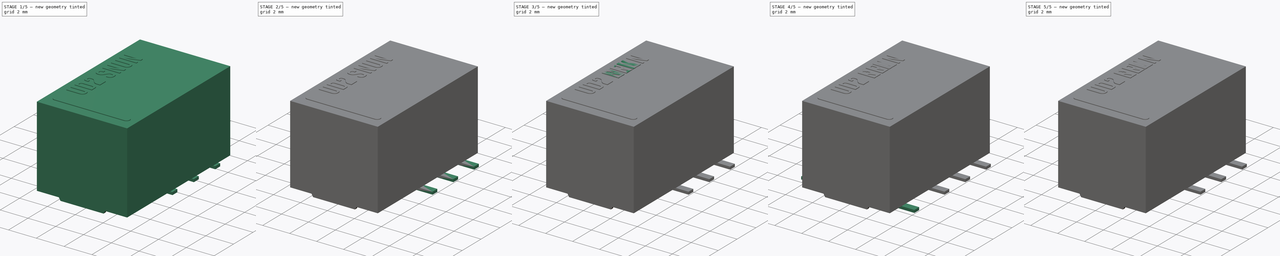
[diagram: build sequence overview — one tinted view per stage of 5, left to right]
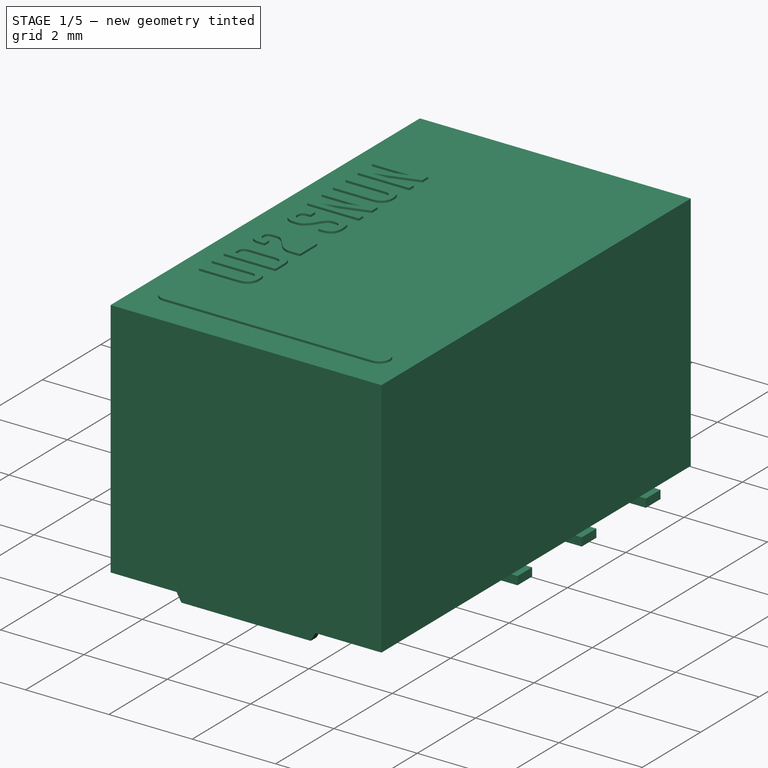
[diagram: stage 1 of 5 — iso view after this stage's code; geometry added in this stage tinted green]
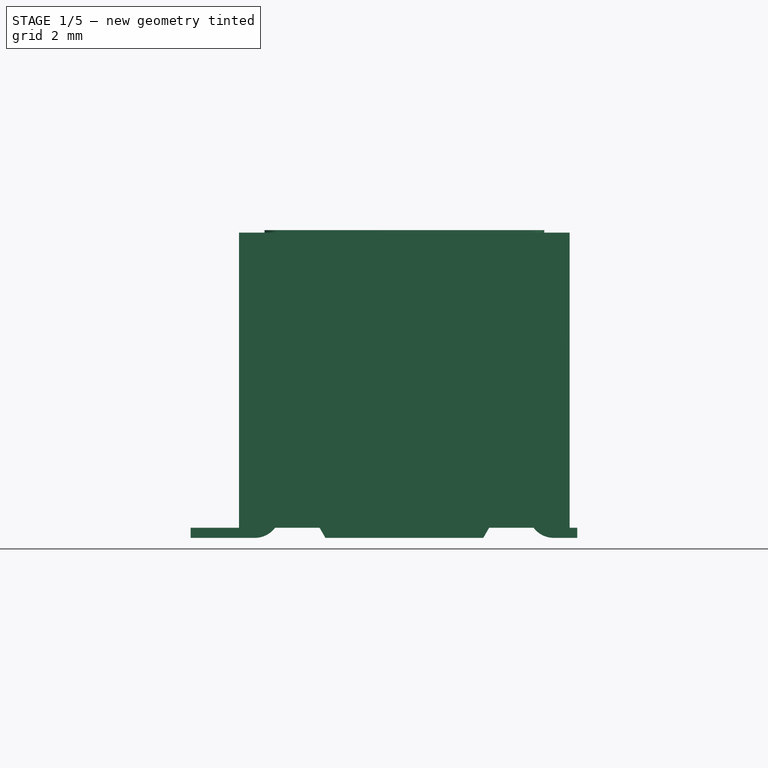
[diagram: stage 1 of 5 — front view after this stage's code; geometry added in this stage tinted green]
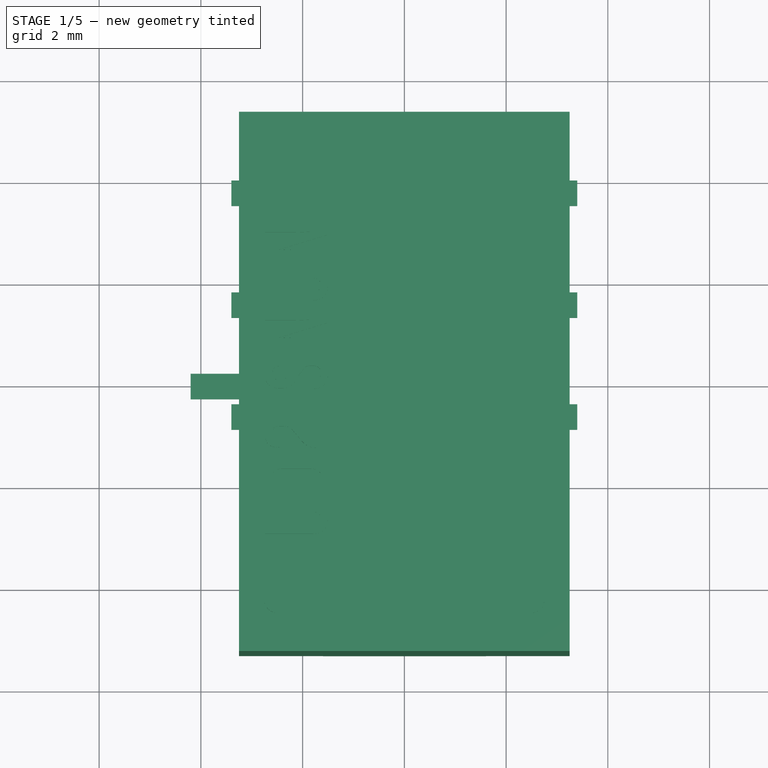
[diagram: stage 1 of 5 — top view after this stage's code; geometry added in this stage tinted green]
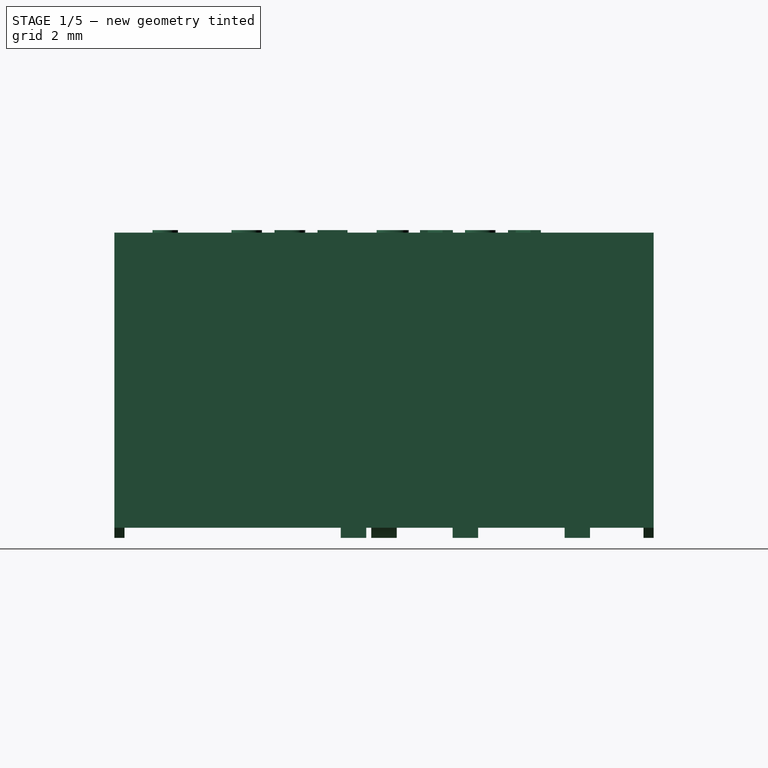
[diagram: stage 1 of 5 — right view after this stage's code; geometry added in this stage tinted green]
FCSTD DOCUMENT  (FreeCAD 0.19R16945 (Git))
Label: Kemet UD2 Series
License: All rights reserved
LicenseURL: http://en.wikipedia.org/wiki/All_rights_reserved
objects: Sketcher::SketchObject×42, PartDesign::Pad×36, PartDesign::Body×36, PartDesign::FeatureBase×24, PartDesign::Pocket×12, PartDesign::Fillet×12, Part::FeaturePython×12, PartDesign::Mirrored×6, Part::Part2DObjectPython×6, App::Part×6
note: 234 computed .brp shape members not serialized (recipe doc carries the construction recipe); baked Part::Feature solids carry a one-line shape summary decoded from their .brp

FEATURE [Sketcher::SketchObject] Sketch060
  MapMode = 5
  Placement = pos=(0,0,0.3) rot=(1,0,0;3.14159rad)
  Support = -> [Pocket021]
  sketch-geometry (8):
    g0: LineSegment StartX=-1.48597 StartY=4.5632 StartZ=0 EndX=1.48597 EndY=4.5632 EndZ=0
    g1: LineSegment StartX=2.2229 StartY=3.82626 StartZ=0 EndX=2.2229 EndY=-3.82626 EndZ=0
    g2: LineSegment StartX=1.48597 StartY=-4.5632 StartZ=0 EndX=-1.48597 EndY=-4.5632 EndZ=0
    g3: LineSegment StartX=-2.2229 StartY=-3.82626 StartZ=0 EndX=-2.2229 EndY=3.82626 EndZ=0
    g4: ArcOfCircle CenterX=-1.48597 CenterY=3.82626 CenterZ=0 NormalX=0 NormalY=0 NormalZ=1 AngleXU=0 Radius=0.736932 StartAngle=1.5708 EndAngle=3.14159
    g5: ArcOfCircle CenterX=1.48597 CenterY=3.82626 CenterZ=0 NormalX=0 NormalY=0 NormalZ=1 AngleXU=0 Radius=0.736932 StartAngle=0 EndAngle=1.5708
    g6: ArcOfCircle CenterX=1.48597 CenterY=-3.82626 CenterZ=0 NormalX=0 NormalY=0 NormalZ=1 AngleXU=0 Radius=0.736932 StartAngle=4.71239 EndAngle=6.28319
    g7: ArcOfCircle CenterX=-1.48597 CenterY=-3.82626 CenterZ=0 NormalX=0 NormalY=0 NormalZ=1 AngleXU=0 Radius=0.736932 StartAngle=3.14159 EndAngle=4.71239
  constraints (15):
    c: Horizontal(g0)
    c: Horizontal(g2)
    c: Vertical(g1)
    c: Vertical(g3)
    c: Tangent(g0,g4) = 1.5708
    c: Tangent(g3,g4) = 1.5708
    c: Tangent(g0,g5) = 1.5708
    c: Tangent(g1,g5) = 1.5708
    c: Tangent(g1,g6) = 1.5708
    c: Tangent(g2,g6) = 1.5708
    c: Tangent(g2,g7) = 1.5708
    c: Tangent(g3,g7) = 1.5708
    c: Equal(g7,g6)
    c: Symmetric(g3,g1,g-2)
    c: Symmetric(g0,g2,g-1)
FEATURE [Sketcher::SketchObject] Sketch065
  MapMode = 5
  Placement = pos=(0,0,0) rot=(1,0,0;1.5708rad)
  Support = -> [XZ_Plane057]
  sketch-geometry (7):
    g0: LineSegment StartX=-2.64 StartY=1.2 StartZ=0 EndX=-2.64 EndY=0.2 EndZ=0
    g1: LineSegment StartX=-2.64 StartY=0.2 StartZ=0 EndX=-4.2 EndY=0.2 EndZ=0
    g2: LineSegment StartX=-4.2 StartY=0.2 StartZ=0 EndX=-4.2 EndY=0 EndZ=0
    g3: LineSegment StartX=-4.2 StartY=0 StartZ=0 EndX=-2.44 EndY=0 EndZ=0
    g4: LineSegment StartX=-2.44 StartY=0 StartZ=0 EndX=-2.44 EndY=1.2 EndZ=0
    g5: LineSegment StartX=-2.44 StartY=1.2 StartZ=0 EndX=-2.64 EndY=1.2 EndZ=0
    g6: GeomPoint X=-2.54 Y=1.2 Z=0
  constraints (19):
    c: Vertical(g0)
    c: Coincident(g0,g1)
    c: Horizontal(g1)
    c: Coincident(g1,g2)
    c: PointOnObject(g2,g-1)
    c: Vertical(g2)
    c: Coincident(g2,g3)
    c: Horizontal(g3)
    c: Coincident(g3,g4)
    c: Vertical(g4)
    c: Coincident(g4,g5)
    c: Coincident(g5,g0)
    c: Horizontal(g5)
    c: DistanceY(g2,g2) = 0.2
    c: Symmetric(g0,g4,g6)
    c: DistanceX(g6,g-1) = 2.54
    c: Equal(g5,g2)
    c: DistanceY(g4,g4) = 1.2
    c: DistanceX(g2,g-1) = 4.2
FEATURE [PartDesign::Pad] Pad044
  Length = 0.5
  Length2 = 100
  Midplane = true
  Placement = pos=(0,0,0) rot=(1,0,0;1.5708rad)
  Profile = -> Sketch065
  Type = 0
FEATURE [PartDesign::Body] Body048  label="UD2-SNU_Body"
  Group = -> [Sketch062,Pad048,Sketch063,Pocket020,Sketch061,Pocket021,Sketch060,Sketch066,Pad047,Mirrored004,Pad045,Sketch067,Pad046,ShapeString004,Pad043]
  Origin = -> Origin057
  Tip = -> Pad043
FEATURE [PartDesign::Fillet] Fillet009
  Base = -> Pad044 [Edge2]
  BaseFeature = -> Pad044
  Placement = pos=(0,0,0) rot=(1,0,0;1.5708rad)
  Radius = 0.25
FEATURE [PartDesign::Fillet] Fillet008
  Base = -> Fillet009 [Edge20]
  BaseFeature = -> Fillet009
  Placement = pos=(0,0,0) rot=(1,0,0;1.5708rad)
  Radius = 0.5
FEATURE [App::Part] Part004  label="UD2-SNU"
  Group = -> [Body048,Body047,Body049,Body052,Body050,Body051,Array015,Array016]
  Origin = -> Origin058
FEATURE [Sketcher::SketchObject] Sketch073
  MapMode = 5
  Placement = pos=(0,0,0) rot=(1,0,0;1.5708rad)
  Support = -> [XZ_Plane068]
  sketch-geometry (7):
    g0: LineSegment StartX=-2.64 StartY=1.2 StartZ=0 EndX=-2.64 EndY=0.2 EndZ=0
    g1: LineSegment StartX=-2.64 StartY=0.2 StartZ=0 EndX=-3.4 EndY=0.2 EndZ=0
    g2: LineSegment StartX=-3.4 StartY=0.2 StartZ=0 EndX=-3.4 EndY=0 EndZ=0
    g3: LineSegment StartX=-3.4 StartY=0 StartZ=0 EndX=-2.44 EndY=0 EndZ=0
    g4: LineSegment StartX=-2.44 StartY=0 StartZ=0 EndX=-2.44 EndY=1.2 EndZ=0
    g5: LineSegment StartX=-2.44 StartY=1.2 StartZ=0 EndX=-2.64 EndY=1.2 EndZ=0
    g6: GeomPoint X=-2.54 Y=1.2 Z=0
  constraints (19):
    c: Vertical(g0)
    c: Coincident(g0,g1)
    c: Horizontal(g1)
    c: Coincident(g1,g2)
    c: PointOnObject(g2,g-1)
    c: Vertical(g2)
    c: Coincident(g2,g3)
    c: Horizontal(g3)
    c: Coincident(g3,g4)
    c: Vertical(g4)
    c: Coincident(g4,g5)
    c: Coincident(g5,g0)
    c: Horizontal(g5)
    c: DistanceY(g2,g2) = 0.2
    c: Symmetric(g0,g4,g6)
    c: DistanceX(g6,g-1) = 2.54
    c: Equal(g5,g2)
    c: DistanceY(g4,g4) = 1.2
    c: DistanceX(g2,g-1) = 3.4
FEATURE [PartDesign::Pad] Pad051
  Length = 0.5
  Length2 = 100
  Midplane = true
  Placement = pos=(0,0,0) rot=(1,0,0;1.5708rad)
  Profile = -> Sketch073
  Type = 0
FEATURE [Sketcher::SketchObject] Sketch075
  MapMode = 5
  Support = -> [XY_Plane064]
  sketch-geometry (4):
    g0: LineSegment StartX=3.25 StartY=-5.3 StartZ=0 EndX=-3.25 EndY=-5.3 EndZ=0
    g1: LineSegment StartX=-3.25 StartY=-5.3 StartZ=0 EndX=-3.25 EndY=5.3 EndZ=0
    g2: LineSegment StartX=-3.25 StartY=5.3 StartZ=0 EndX=3.25 EndY=5.3 EndZ=0
    g3: LineSegment StartX=3.25 StartY=5.3 StartZ=0 EndX=3.25 EndY=-5.3 EndZ=0
  constraints (10):
    c: Coincident(g0,g1)
    c: Coincident(g1,g2)
    c: Coincident(g2,g3)
    c: Coincident(g3,g0)
    c: Horizontal(g0)
    c: Vertical(g1)
    c: Symmetric(g1,g2,g-2)
    c: Symmetric(g2,g0,g-1)
    c: DistanceX(g2,g2) = 6.5
    c: DistanceY(g3,g3) = 10.6
FEATURE [PartDesign::Pad] Pad053  label="MainPad005"
  Length = 6
  Length2 = 100
  Profile = -> Sketch075
  Type = 0
FEATURE [Sketcher::SketchObject] Sketch070
  ExternalGeometry = -> [Pad053]
  MapMode = 5
  Placement = pos=(-3.25,0,0) rot=(0.57735,-0.57735,-0.57735;2.0944rad)
  Support = -> [Pad053]
  sketch-geometry (4):
    g0: LineSegment StartX=-5.3 StartY=0 StartZ=0 EndX=5.3 EndY=0 EndZ=0
    g1: LineSegment StartX=5.3 StartY=0 StartZ=0 EndX=5.3 EndY=0.2 EndZ=0
    g2: LineSegment StartX=5.3 StartY=0.2 StartZ=0 EndX=-5.3 EndY=0.2 EndZ=0
    g3: LineSegment StartX=-5.3 StartY=0.2 StartZ=0 EndX=-5.3 EndY=0 EndZ=0
  constraints (11):
    c: Coincident(g0,g1)
    c: Coincident(g1,g2)
    c: Coincident(g2,g3)
    c: Coincident(g3,g0)
    c: Horizontal(g0)
    c: Horizontal(g2)
    c: Vertical(g1)
    c: Vertical(g3)
    c: Coincident(g0,g-3)
    c: PointOnObject(g1,g-4)
    c: DistanceY(g1,g1) = 0.2
FEATURE [PartDesign::Pocket] Pocket024  label="BottomPocket010"
  BaseFeature = -> Pad053
  Length = 5
  Length2 = 100
  Profile = -> Sketch070
  Type = 1
FEATURE [Sketcher::SketchObject] Sketch076
  ExternalGeometry = -> [Pocket024]
  MapMode = 5
  Placement = pos=(0,0,0.2) rot=(1,0,0;3.14159rad)
  Support = -> [Pocket024]
  sketch-geometry (4):
    g0: LineSegment StartX=-3.05 StartY=5.1 StartZ=0 EndX=3.05 EndY=5.1 EndZ=0
    g1: LineSegment StartX=3.05 StartY=5.1 StartZ=0 EndX=3.05 EndY=-5.1 EndZ=0
    g2: LineSegment StartX=3.05 StartY=-5.1 StartZ=0 EndX=-3.05 EndY=-5.1 EndZ=0
    g3: LineSegment StartX=-3.05 StartY=-5.1 StartZ=0 EndX=-3.05 EndY=5.1 EndZ=0
  constraints (10):
    c: Coincident(g0,g1)
    c: Coincident(g1,g2)
    c: Coincident(g2,g3)
    c: Coincident(g3,g0)
    c: Horizontal(g2)
    c: Vertical(g3)
    c: Symmetric(g0,g0,g-2)
    c: Symmetric(g0,g1,g-1)
    c: DistanceX(g0,g-3) = 0.2
    c: DistanceY(g0,g-3) = 0.2
FEATURE [PartDesign::Pocket] Pocket025  label="BottomPocket011"
  BaseFeature = -> Pocket024
  Length = 0.1
  Length2 = 100
  Profile = -> Sketch076
  Type = 0
FEATURE [Sketcher::SketchObject] Sketch072
  MapMode = 5
  Placement = pos=(0,0,0.3) rot=(1,0,0;3.14159rad)
  Support = -> [Pocket025]
  sketch-geometry (8):
    g0: LineSegment StartX=-1.48597 StartY=4.5632 StartZ=0 EndX=1.48597 EndY=4.5632 EndZ=0
    g1: LineSegment StartX=2.2229 StartY=3.82626 StartZ=0 EndX=2.2229 EndY=-3.82626 EndZ=0
    g2: LineSegment StartX=1.48597 StartY=-4.5632 StartZ=0 EndX=-1.48597 EndY=-4.5632 EndZ=0
    g3: LineSegment StartX=-2.2229 StartY=-3.82626 StartZ=0 EndX=-2.2229 EndY=3.82626 EndZ=0
    g4: ArcOfCircle CenterX=-1.48597 CenterY=3.82626 CenterZ=0 NormalX=0 NormalY=0 NormalZ=1 AngleXU=0 Radius=0.736932 StartAngle=1.5708 EndAngle=3.14159
    g5: ArcOfCircle CenterX=1.48597 CenterY=3.82626 CenterZ=0 NormalX=0 NormalY=0 NormalZ=1 AngleXU=0 Radius=0.736932 StartAngle=0 EndAngle=1.5708
    g6: ArcOfCircle CenterX=1.48597 CenterY=-3.82626 CenterZ=0 NormalX=0 NormalY=0 NormalZ=1 AngleXU=0 Radius=0.736932 StartAngle=4.71239 EndAngle=6.28319
    g7: ArcOfCircle CenterX=-1.48597 CenterY=-3.82626 CenterZ=0 NormalX=0 NormalY=0 NormalZ=1 AngleXU=0 Radius=0.736932 StartAngle=3.14159 EndAngle=4.71239
  constraints (15):
    c: Horizontal(g0)
    c: Horizontal(g2)
    c: Vertical(g1)
    c: Vertical(g3)
    c: Tangent(g0,g4) = 1.5708
    c: Tangent(g3,g4) = 1.5708
    c: Tangent(g0,g5) = 1.5708
    c: Tangent(g1,g5) = 1.5708
    c: Tangent(g1,g6) = 1.5708
    c: Tangent(g2,g6) = 1.5708
    c: Tangent(g2,g7) = 1.5708
    c: Tangent(g3,g7) = 1.5708
    c: Equal(g7,g6)
    c: Symmetric(g3,g1,g-2)
    c: Symmetric(g0,g2,g-1)
FEATURE [Sketcher::SketchObject] Sketch077
  MapMode = 5
  Placement = pos=(0,-5.3,0) rot=(1,0,0;1.5708rad)
  Support = -> [Pocket025]
  sketch-geometry (4):
    g0: LineSegment StartX=-1.55163 StartY=0 StartZ=0 EndX=-1.6671 EndY=0.2 EndZ=0
    g1: LineSegment StartX=-1.6671 StartY=0.2 StartZ=0 EndX=1.6671 EndY=0.2 EndZ=0
    g2: LineSegment StartX=1.6671 StartY=0.2 StartZ=0 EndX=1.55163 EndY=0 EndZ=0
    g3: LineSegment StartX=1.55163 StartY=0 StartZ=0 EndX=-1.55163 EndY=0 EndZ=0
  constraints (10):
    c: Coincident(g0,g1)
    c: Coincident(g1,g2)
    c: PointOnObject(g2,g-1)
    c: Coincident(g2,g3)
    c: Coincident(g3,g0)
    c: Symmetric(g0,g1,g-2)
    c: Symmetric(g0,g2,g-2)
    c: Equal(g0,g2)
    c: DistanceY(g-1,g0) = 0.2
    c: Angle(g3,g0) = 2.0944
FEATURE [PartDesign::Pad] Pad049
  BaseFeature = -> Pocket025
  Length = 0.2
  Length2 = 100
  Profile = -> Sketch077
  Refine = true
  Reversed = true
  Type = 0
FEATURE [PartDesign::Mirrored] Mirrored005
  BaseFeature = -> Pad049
  MirrorPlane = -> XZ_Plane067
  Originals = -> [Pad049]
  Refine = true
FEATURE [PartDesign::Pad] Pad050  label="BottomPad005"
  BaseFeature = -> Mirrored005
  Length = 0.05
  Length2 = 100
  Profile = -> Sketch072
  Type = 0
FEATURE [Sketcher::SketchObject] Sketch071
  ExternalGeometry = -> [Pad050]
  MapMode = 5
  Placement = pos=(0,0,6) rot=(0,0,1;0rad)
  Support = -> [Pad050]
  sketch-geometry (4):
    g0: ArcOfCircle CenterX=-2.5 CenterY=-4.3 CenterZ=0 NormalX=0 NormalY=0 NormalZ=1 AngleXU=0 Radius=0.25 StartAngle=1.5708 EndAngle=4.71239
    g1: ArcOfCircle CenterX=2.5 CenterY=-4.3 CenterZ=0 NormalX=0 NormalY=0 NormalZ=1 AngleXU=0 Radius=0.25 StartAngle=4.71239 EndAngle=7.85398
    g2: LineSegment StartX=-2.5 StartY=-4.55 StartZ=0 EndX=2.5 EndY=-4.55 EndZ=0
    g3: LineSegment StartX=-2.5 StartY=-4.05 StartZ=0 EndX=2.5 EndY=-4.05 EndZ=0
  constraints (9):
    c: Tangent(g0,g3) = 1.5708
    c: Tangent(g0,g2) = -1.5708
    c: Tangent(g2,g1) = -1.5708
    c: Tangent(g3,g1) = 1.5708
    c: Horizontal(g2)
    c: Symmetric(g1,g0,g-2)
    c: DistanceY(g1,g1) = 0.5
    c: DistanceX(g-3,g0) = 0.75
    c: DistanceY(g-4,g0) = 1
FEATURE [PartDesign::Pad] Pad052  label="CoilMarkingPad005"
  BaseFeature = -> Pad050
  Length = 0.05
  Length2 = 100
  Profile = -> Sketch071
  Type = 0
FEATURE [Part::Part2DObjectPython] ShapeString005  # Draft 2D object (typed FeaturePython)
  AttachmentOffset = pos=(-1,-1,0) rot=(0,0,-1;1.5708rad)
  FontFile = <userpath>/Desktop/GitHub/freecad-projects/00-fonts/coolvetica condensed rg.ttf
  MapMode = 6
  Placement = pos=(-1.5,-3.05,6) rot=(0,0,1;1.5708rad)
  Size = 0.75
  String = UD2 SNUN
  Support = -> [Pad052]
  Tracking = 0.125
FEATURE [PartDesign::Pad] Pad054  label="ShapeStringPad005"
  BaseFeature = -> Pad052
  Length = 0.05
  Length2 = 100
  Profile = -> ShapeString005
  Refine = true
  Type = 0
FEATURE [PartDesign::Fillet] Fillet010
  Base = -> Pad051 [Edge2]
  BaseFeature = -> Pad051
  Placement = pos=(0,0,0) rot=(1,0,0;1.5708rad)
  Radius = 0.25
FEATURE [PartDesign::Fillet] Fillet011
  Base = -> Fillet010 [Edge20]
  BaseFeature = -> Fillet010
  Placement = pos=(0,0,0) rot=(1,0,0;1.5708rad)
  Radius = 0.5
FEATURE [PartDesign::Body] Body053  label="UD2-SNUN_Body"
  Group = -> [Sketch075,Pad053,Sketch070,Pocket024,Sketch076,Pocket025,Sketch072,Sketch077,Pad049,Mirrored005,Pad050,Sketch071,Pad052,ShapeString005,Pad054]
  Origin = -> Origin064
  Tip = -> Pad054
FEATURE [PartDesign::Body] Body057
  Group = -> [Sketch073,Pad051,Fillet010,Fillet011]
  Origin = -> Origin066
  Tip = -> Fillet011
FEATURE [PartDesign::FeatureBase] Clone035
  BaseFeature = -> Body057
FEATURE [PartDesign::FeatureBase] Clone037
  BaseFeature = -> Body057
FEATURE [PartDesign::Body] Body054
  BaseFeature = -> Body057
  Group = -> [Clone037]
  Origin = -> Origin067
  Placement = pos=(0,-3.8,0) rot=(0,0,1;0rad)
  Tip = -> Clone037
FEATURE [PartDesign::FeatureBase] Clone036
  BaseFeature = -> Body054
  Placement = pos=(0,-3.8,0) rot=(0,0,1;0rad)
FEATURE [PartDesign::Body] Body055
  Group = -> [Clone036]
  Origin = -> Origin065
  Placement = pos=(0,3.2,0) rot=(0,0,1;0rad)
  Tip = -> Clone036
FEATURE [Part::FeaturePython] Array017  # Draft array (typed FeaturePython)
  Angle = 360
  ArrayType = 0
  Axis = (0,0,1)
  Base = -> Body055
  Center = (0,0,0)
  Fuse = false
  IntervalAxis = (0,0,0)
  IntervalX = (1,0,0)
  IntervalY = (0,2.2,0)
  IntervalZ = (0,0,1)
  NumberPolar = 1
  NumberX = 1
  NumberY = 3
  NumberZ = 1
FEATURE [PartDesign::Body] Body056
  BaseFeature = -> Body057
  Group = -> [Clone035]
  Origin = -> Origin063
  Placement = pos=(0,-3.8,0) rot=(0,0,1;3.14159rad)
  Tip = -> Clone035
FEATURE [PartDesign::FeatureBase] Clone034
  BaseFeature = -> Body056
  Placement = pos=(0,-3.8,0) rot=(0,0,1;3.14159rad)
FEATURE [PartDesign::Body] Body058
  Group = -> [Clone034]
  Origin = -> Origin062
  Placement = pos=(0,3.2,0) rot=(0,0,1;0rad)
  Tip = -> Clone034
FEATURE [Part::FeaturePython] Array018  # Draft array (typed FeaturePython)
  Angle = 360
  ArrayType = 0
  Axis = (0,0,1)
  Base = -> Body058
  Center = (0,0,0)
  Fuse = false
  IntervalAxis = (0,0,0)
  IntervalX = (1,0,0)
  IntervalY = (0,2.2,0)
  IntervalZ = (0,0,1)
  NumberPolar = 1
  NumberX = 1
  NumberY = 3
  NumberZ = 1
FEATURE [App::Part] Part005  label="UD2-SNUN"
  Group = -> [Body053,Body057,Body056,Body054,Body058,Body055,Array018,Array017]
  Origin = -> Origin061
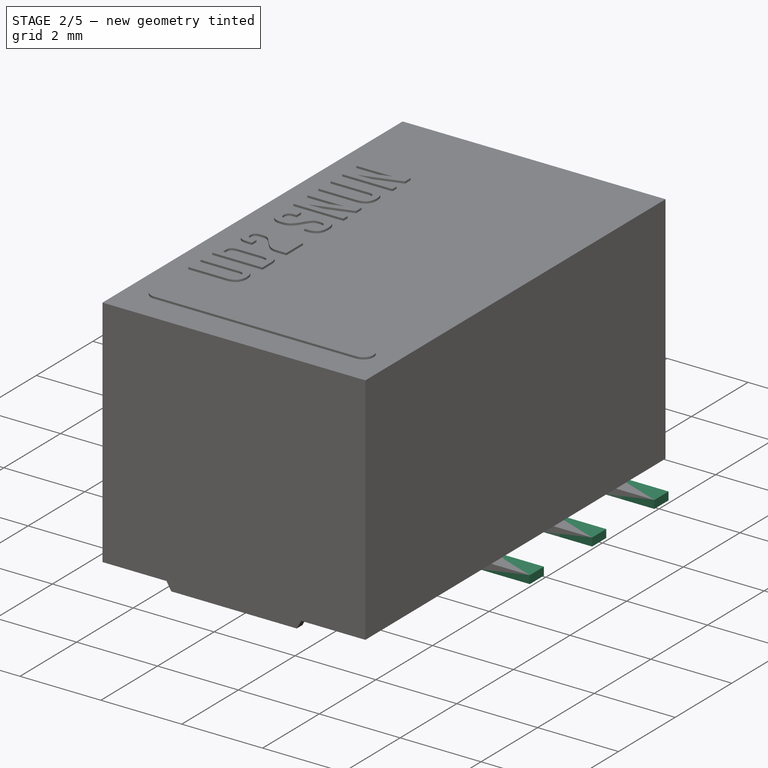
[diagram: stage 2 of 5 — iso view after this stage's code; geometry added in this stage tinted green]
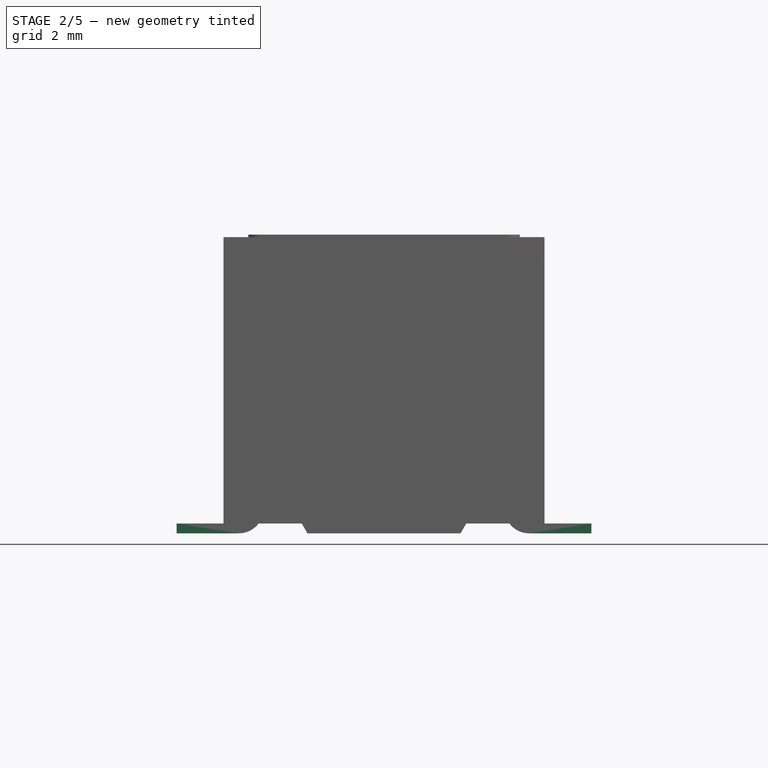
[diagram: stage 2 of 5 — front view after this stage's code; geometry added in this stage tinted green]
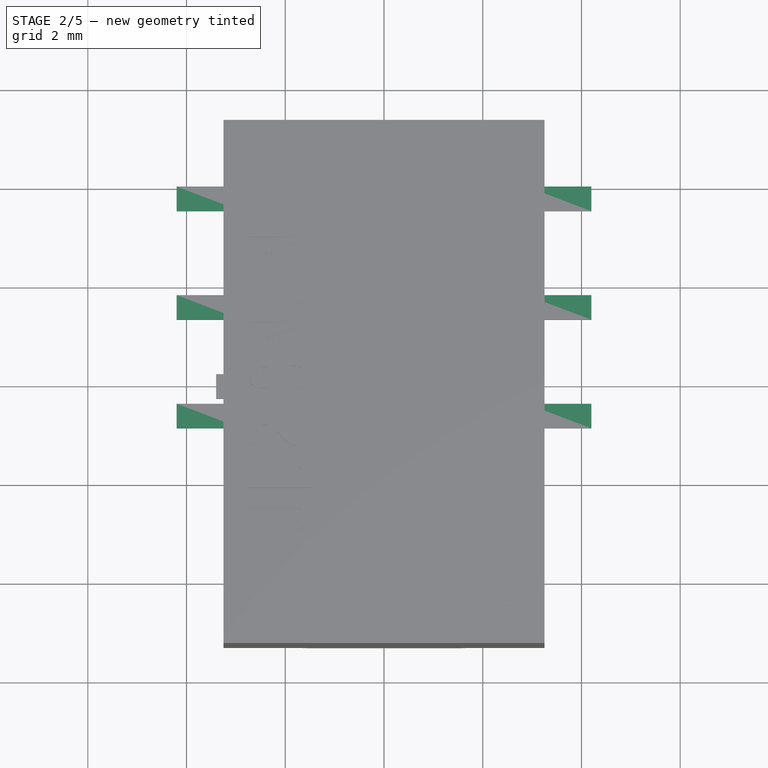
[diagram: stage 2 of 5 — top view after this stage's code; geometry added in this stage tinted green]
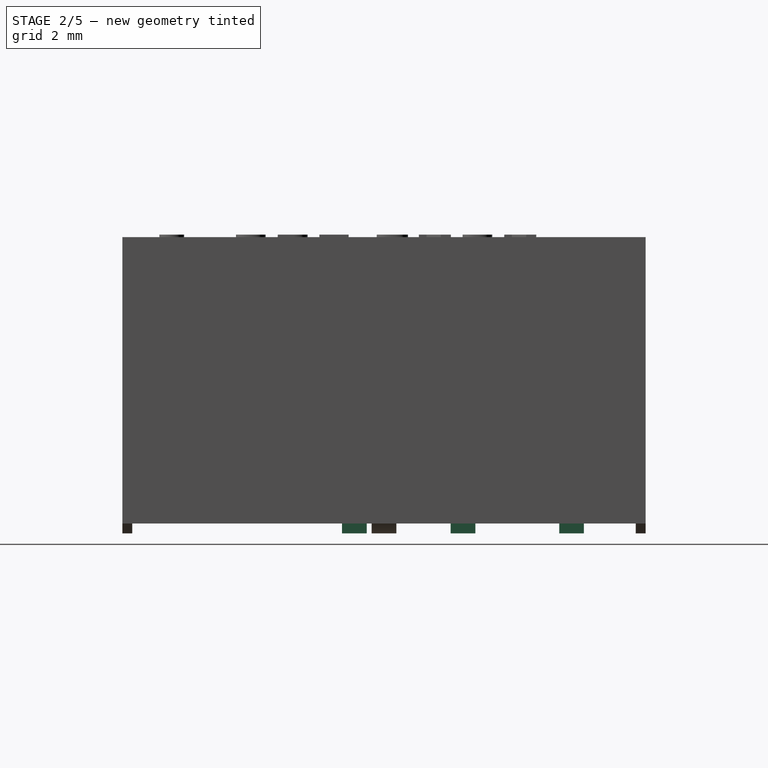
[diagram: stage 2 of 5 — right view after this stage's code; geometry added in this stage tinted green]
FEATURE [PartDesign::Body] Body036  label="UD2-NUN_Body"
  Group = -> [Sketch043,Pad035,Sketch050,Pocket016,Sketch044,Pocket014,Sketch045,Sketch048,Pad031,Mirrored002,Pad032,Sketch042,Pad034,ShapeString002,Pad036]
  Origin = -> Origin043
  Tip = -> Pad036
FEATURE [App::Part] Part002  label="UD2-NUN"
  Group = -> [Body036,Body039,Body040,Body035,Body038,Body037,Array012,Array011]
  Origin = -> Origin040
FEATURE [PartDesign::Body] Body046  label="UD2-NEN_Body"
  Origin = -> Origin052
FEATURE [Sketcher::SketchObject] Sketch054
  MapMode = 5
  Support = -> [XY_Plane053]
  sketch-geometry (4):
    g0: LineSegment StartX=3.25 StartY=-5.3 StartZ=0 EndX=-3.25 EndY=-5.3 EndZ=0
    g1: LineSegment StartX=-3.25 StartY=-5.3 StartZ=0 EndX=-3.25 EndY=5.3 EndZ=0
    g2: LineSegment StartX=-3.25 StartY=5.3 StartZ=0 EndX=3.25 EndY=5.3 EndZ=0
    g3: LineSegment StartX=3.25 StartY=5.3 StartZ=0 EndX=3.25 EndY=-5.3 EndZ=0
  constraints (10):
    c: Coincident(g0,g1)
    c: Coincident(g1,g2)
    c: Coincident(g2,g3)
    c: Coincident(g3,g0)
    c: Horizontal(g0)
    c: Vertical(g1)
    c: Symmetric(g1,g2,g-2)
    c: Symmetric(g2,g0,g-1)
    c: DistanceX(g2,g2) = 6.5
    c: DistanceY(g3,g3) = 10.6
FEATURE [PartDesign::Pad] Pad042  label="MainPad003"
  Length = 6
  Length2 = 100
  Profile = -> Sketch054
  Type = 0
FEATURE [Sketcher::SketchObject] Sketch058
  ExternalGeometry = -> [Pad042]
  MapMode = 5
  Placement = pos=(-3.25,0,0) rot=(0.57735,-0.57735,-0.57735;2.0944rad)
  Support = -> [Pad042]
  sketch-geometry (4):
    g0: LineSegment StartX=-5.3 StartY=0 StartZ=0 EndX=5.3 EndY=0 EndZ=0
    g1: LineSegment StartX=5.3 StartY=0 StartZ=0 EndX=5.3 EndY=0.2 EndZ=0
    g2: LineSegment StartX=5.3 StartY=0.2 StartZ=0 EndX=-5.3 EndY=0.2 EndZ=0
    g3: LineSegment StartX=-5.3 StartY=0.2 StartZ=0 EndX=-5.3 EndY=0 EndZ=0
  constraints (11):
    c: Coincident(g0,g1)
    c: Coincident(g1,g2)
    c: Coincident(g2,g3)
    c: Coincident(g3,g0)
    c: Horizontal(g0)
    c: Horizontal(g2)
    c: Vertical(g1)
    c: Vertical(g3)
    c: Coincident(g0,g-3)
    c: PointOnObject(g1,g-4)
    c: DistanceY(g1,g1) = 0.2
FEATURE [PartDesign::Pocket] Pocket019  label="BottomPocket007"
  BaseFeature = -> Pad042
  Length = 5
  Length2 = 100
  Profile = -> Sketch058
  Type = 1
FEATURE [Sketcher::SketchObject] Sketch053
  ExternalGeometry = -> [Pocket019]
  MapMode = 5
  Placement = pos=(0,0,0.2) rot=(1,0,0;3.14159rad)
  Support = -> [Pocket019]
  sketch-geometry (4):
    g0: LineSegment StartX=-3.05 StartY=5.1 StartZ=0 EndX=3.05 EndY=5.1 EndZ=0
    g1: LineSegment StartX=3.05 StartY=5.1 StartZ=0 EndX=3.05 EndY=-5.1 EndZ=0
    g2: LineSegment StartX=3.05 StartY=-5.1 StartZ=0 EndX=-3.05 EndY=-5.1 EndZ=0
    g3: LineSegment StartX=-3.05 StartY=-5.1 StartZ=0 EndX=-3.05 EndY=5.1 EndZ=0
  constraints (10):
    c: Coincident(g0,g1)
    c: Coincident(g1,g2)
    c: Coincident(g2,g3)
    c: Coincident(g3,g0)
    c: Horizontal(g2)
    c: Vertical(g3)
    c: Symmetric(g0,g0,g-2)
    c: Symmetric(g0,g1,g-1)
    c: DistanceX(g0,g-3) = 0.2
    c: DistanceY(g0,g-3) = 0.2
FEATURE [PartDesign::Pocket] Pocket017  label="BottomPocket006"
  Length = 0.1
  Length2 = 100
  Profile = -> Sketch053
  Type = 0
FEATURE [Sketcher::SketchObject] Sketch052
  MapMode = 5
  Placement = pos=(0,0,0.3) rot=(1,0,0;3.14159rad)
  Support = -> [Pocket017]
  sketch-geometry (8):
    g0: LineSegment StartX=-1.48597 StartY=4.5632 StartZ=0 EndX=1.48597 EndY=4.5632 EndZ=0
    g1: LineSegment StartX=2.2229 StartY=3.82626 StartZ=0 EndX=2.2229 EndY=-3.82626 EndZ=0
    g2: LineSegment StartX=1.48597 StartY=-4.5632 StartZ=0 EndX=-1.48597 EndY=-4.5632 EndZ=0
    g3: LineSegment StartX=-2.2229 StartY=-3.82626 StartZ=0 EndX=-2.2229 EndY=3.82626 EndZ=0
    g4: ArcOfCircle CenterX=-1.48597 CenterY=3.82626 CenterZ=0 NormalX=0 NormalY=0 NormalZ=1 AngleXU=0 Radius=0.736932 StartAngle=1.5708 EndAngle=3.14159
    g5: ArcOfCircle CenterX=1.48597 CenterY=3.82626 CenterZ=0 NormalX=0 NormalY=0 NormalZ=1 AngleXU=0 Radius=0.736932 StartAngle=0 EndAngle=1.5708
    g6: ArcOfCircle CenterX=1.48597 CenterY=-3.82626 CenterZ=0 NormalX=0 NormalY=0 NormalZ=1 AngleXU=0 Radius=0.736932 StartAngle=4.71239 EndAngle=6.28319
    g7: ArcOfCircle CenterX=-1.48597 CenterY=-3.82626 CenterZ=0 NormalX=0 NormalY=0 NormalZ=1 AngleXU=0 Radius=0.736932 StartAngle=3.14159 EndAngle=4.71239
  constraints (15):
    c: Horizontal(g0)
    c: Horizontal(g2)
    c: Vertical(g1)
    c: Vertical(g3)
    c: Tangent(g0,g4) = 1.5708
    c: Tangent(g3,g4) = 1.5708
    c: Tangent(g0,g5) = 1.5708
    c: Tangent(g1,g5) = 1.5708
    c: Tangent(g1,g6) = 1.5708
    c: Tangent(g2,g6) = 1.5708
    c: Tangent(g2,g7) = 1.5708
    c: Tangent(g3,g7) = 1.5708
    c: Equal(g7,g6)
    c: Symmetric(g3,g1,g-2)
    c: Symmetric(g0,g2,g-1)
FEATURE [Sketcher::SketchObject] Sketch057
  MapMode = 5
  Placement = pos=(0,-5.3,0) rot=(1,0,0;1.5708rad)
  Support = -> [Pocket017]
  sketch-geometry (4):
    g0: LineSegment StartX=-1.55163 StartY=0 StartZ=0 EndX=-1.6671 EndY=0.2 EndZ=0
    g1: LineSegment StartX=-1.6671 StartY=0.2 StartZ=0 EndX=1.6671 EndY=0.2 EndZ=0
    g2: LineSegment StartX=1.6671 StartY=0.2 StartZ=0 EndX=1.55163 EndY=0 EndZ=0
    g3: LineSegment StartX=1.55163 StartY=0 StartZ=0 EndX=-1.55163 EndY=0 EndZ=0
  constraints (10):
    c: Coincident(g0,g1)
    c: Coincident(g1,g2)
    c: PointOnObject(g2,g-1)
    c: Coincident(g2,g3)
    c: Coincident(g3,g0)
    c: Symmetric(g0,g1,g-2)
    c: Symmetric(g0,g2,g-2)
    c: Equal(g0,g2)
    c: DistanceY(g-1,g0) = 0.2
    c: Angle(g3,g0) = 2.0944
FEATURE [PartDesign::Pad] Pad037
  BaseFeature = -> Pocket017
  Length = 0.2
  Length2 = 100
  Profile = -> Sketch057
  Refine = true
  Reversed = true
  Type = 0
FEATURE [Sketcher::SketchObject] Sketch059
  MapMode = 5
  Placement = pos=(0,0,0) rot=(1,0,0;1.5708rad)
  Support = -> [XZ_Plane053]
  sketch-geometry (7):
    g0: LineSegment StartX=-2.64 StartY=1.2 StartZ=0 EndX=-2.64 EndY=0.2 EndZ=0
    g1: LineSegment StartX=-2.64 StartY=0.2 StartZ=0 EndX=-3.4 EndY=0.2 EndZ=0
    g2: LineSegment StartX=-3.4 StartY=0.2 StartZ=0 EndX=-3.4 EndY=0 EndZ=0
    g3: LineSegment StartX=-3.4 StartY=0 StartZ=0 EndX=-2.44 EndY=0 EndZ=0
    g4: LineSegment StartX=-2.44 StartY=0 StartZ=0 EndX=-2.44 EndY=1.2 EndZ=0
    g5: LineSegment StartX=-2.44 StartY=1.2 StartZ=0 EndX=-2.64 EndY=1.2 EndZ=0
    g6: GeomPoint X=-2.54 Y=1.2 Z=0
  constraints (19):
    c: Vertical(g0)
    c: Coincident(g0,g1)
    c: Horizontal(g1)
    c: Coincident(g1,g2)
    c: PointOnObject(g2,g-1)
    c: Vertical(g2)
    c: Coincident(g2,g3)
    c: Horizontal(g3)
    c: Coincident(g3,g4)
    c: Vertical(g4)
    c: Coincident(g4,g5)
    c: Coincident(g5,g0)
    c: Horizontal(g5)
    c: DistanceY(g2,g2) = 0.2
    c: Symmetric(g0,g4,g6)
    c: DistanceX(g6,g-1) = 2.54
    c: Equal(g5,g2)
    c: DistanceY(g4,g4) = 1.2
    c: DistanceX(g2,g-1) = 3.4
FEATURE [PartDesign::Pad] Pad041
  Length = 0.5
  Length2 = 100
  Midplane = true
  Placement = pos=(0,0,0) rot=(1,0,0;1.5708rad)
  Profile = -> Sketch059
  Type = 0
FEATURE [PartDesign::Fillet] Fillet006
  Base = -> Pad041 [Edge2]
  BaseFeature = -> Pad041
  Placement = pos=(0,0,0) rot=(1,0,0;1.5708rad)
  Radius = 0.25
FEATURE [PartDesign::Fillet] Fillet007
  Base = -> Fillet006 [Edge20]
  BaseFeature = -> Fillet006
  Placement = pos=(0,0,0) rot=(1,0,0;1.5708rad)
  Radius = 0.5
FEATURE [App::Part] Part003  label="UD2-NEN"
  Group = -> [Body046,Body044,Body041,Body045,Body043,Body042,Array013,Array014,Pad039,Pad038,Pad040,Pocket019,Pad042,Pad037,Pocket017,Mirrored003,Sketch057,Sketch054,Sketch052,Sketch053,Sketch055,Sketch058,ShapeString003]
  Origin = -> Origin047
FEATURE [Sketcher::SketchObject] Sketch062
  MapMode = 5
  Support = -> [XY_Plane058]
  sketch-geometry (4):
    g0: LineSegment StartX=3.25 StartY=-5.3 StartZ=0 EndX=-3.25 EndY=-5.3 EndZ=0
    g1: LineSegment StartX=-3.25 StartY=-5.3 StartZ=0 EndX=-3.25 EndY=5.3 EndZ=0
    g2: LineSegment StartX=-3.25 StartY=5.3 StartZ=0 EndX=3.25 EndY=5.3 EndZ=0
    g3: LineSegment StartX=3.25 StartY=5.3 StartZ=0 EndX=3.25 EndY=-5.3 EndZ=0
  constraints (10):
    c: Coincident(g0,g1)
    c: Coincident(g1,g2)
    c: Coincident(g2,g3)
    c: Coincident(g3,g0)
    c: Horizontal(g0)
    c: Vertical(g1)
    c: Symmetric(g1,g2,g-2)
    c: Symmetric(g2,g0,g-1)
    c: DistanceX(g2,g2) = 6.5
    c: DistanceY(g3,g3) = 10.6
FEATURE [PartDesign::Pad] Pad048  label="MainPad004"
  Length = 5.45
  Length2 = 100
  Profile = -> Sketch062
  Type = 0
FEATURE [Sketcher::SketchObject] Sketch063
  ExternalGeometry = -> [Pad048]
  MapMode = 5
  Placement = pos=(-3.25,0,0) rot=(0.57735,-0.57735,-0.57735;2.0944rad)
  Support = -> [Pad048]
  sketch-geometry (4):
    g0: LineSegment StartX=-5.3 StartY=0 StartZ=0 EndX=5.3 EndY=0 EndZ=0
    g1: LineSegment StartX=5.3 StartY=0 StartZ=0 EndX=5.3 EndY=0.2 EndZ=0
    g2: LineSegment StartX=5.3 StartY=0.2 StartZ=0 EndX=-5.3 EndY=0.2 EndZ=0
    g3: LineSegment StartX=-5.3 StartY=0.2 StartZ=0 EndX=-5.3 EndY=0 EndZ=0
  constraints (11):
    c: Coincident(g0,g1)
    c: Coincident(g1,g2)
    c: Coincident(g2,g3)
    c: Coincident(g3,g0)
    c: Horizontal(g0)
    c: Horizontal(g2)
    c: Vertical(g1)
    c: Vertical(g3)
    c: Coincident(g0,g-3)
    c: PointOnObject(g1,g-4)
    c: DistanceY(g1,g1) = 0.2
FEATURE [PartDesign::Pocket] Pocket020  label="BottomPocket008"
  BaseFeature = -> Pad048
  Length = 5
  Length2 = 100
  Profile = -> Sketch063
  Type = 1
FEATURE [Sketcher::SketchObject] Sketch061
  ExternalGeometry = -> [Pocket020]
  MapMode = 5
  Placement = pos=(0,0,0.2) rot=(1,0,0;3.14159rad)
  Support = -> [Pocket020]
  sketch-geometry (4):
    g0: LineSegment StartX=-3.05 StartY=5.1 StartZ=0 EndX=3.05 EndY=5.1 EndZ=0
    g1: LineSegment StartX=3.05 StartY=5.1 StartZ=0 EndX=3.05 EndY=-5.1 EndZ=0
    g2: LineSegment StartX=3.05 StartY=-5.1 StartZ=0 EndX=-3.05 EndY=-5.1 EndZ=0
    g3: LineSegment StartX=-3.05 StartY=-5.1 StartZ=0 EndX=-3.05 EndY=5.1 EndZ=0
  constraints (10):
    c: Coincident(g0,g1)
    c: Coincident(g1,g2)
    c: Coincident(g2,g3)
    c: Coincident(g3,g0)
    c: Horizontal(g2)
    c: Vertical(g3)
    c: Symmetric(g0,g0,g-2)
    c: Symmetric(g0,g1,g-1)
    c: DistanceX(g0,g-3) = 0.2
    c: DistanceY(g0,g-3) = 0.2
FEATURE [PartDesign::Pocket] Pocket021  label="BottomPocket009"
  BaseFeature = -> Pocket020
  Length = 0.1
  Length2 = 100
  Profile = -> Sketch061
  Type = 0
FEATURE [Sketcher::SketchObject] Sketch066
  MapMode = 5
  Placement = pos=(0,-5.3,0) rot=(1,0,0;1.5708rad)
  Support = -> [Pocket021]
  sketch-geometry (4):
    g0: LineSegment StartX=-1.55163 StartY=0 StartZ=0 EndX=-1.6671 EndY=0.2 EndZ=0
    g1: LineSegment StartX=-1.6671 StartY=0.2 StartZ=0 EndX=1.6671 EndY=0.2 EndZ=0
    g2: LineSegment StartX=1.6671 StartY=0.2 StartZ=0 EndX=1.55163 EndY=0 EndZ=0
    g3: LineSegment StartX=1.55163 StartY=0 StartZ=0 EndX=-1.55163 EndY=0 EndZ=0
  constraints (10):
    c: Coincident(g0,g1)
    c: Coincident(g1,g2)
    c: PointOnObject(g2,g-1)
    c: Coincident(g2,g3)
    c: Coincident(g3,g0)
    c: Symmetric(g0,g1,g-2)
    c: Symmetric(g0,g2,g-2)
    c: Equal(g0,g2)
    c: DistanceY(g-1,g0) = 0.2
    c: Angle(g3,g0) = 2.0944
FEATURE [PartDesign::Pad] Pad047
  BaseFeature = -> Pocket021
  Length = 0.2
  Length2 = 100
  Profile = -> Sketch066
  Refine = true
  Reversed = true
  Type = 0
FEATURE [PartDesign::Mirrored] Mirrored004
  BaseFeature = -> Pad047
  MirrorPlane = -> XZ_Plane059
  Originals = -> [Pad047]
  Refine = true
FEATURE [PartDesign::Pad] Pad045  label="BottomPad004"
  BaseFeature = -> Mirrored004
  Length = 0.05
  Length2 = 100
  Profile = -> Sketch060
  Type = 0
FEATURE [Sketcher::SketchObject] Sketch067
  ExternalGeometry = -> [Pad045]
  MapMode = 5
  Placement = pos=(0,0,5.45) rot=(0,0,1;0rad)
  Support = -> [Pad045]
  sketch-geometry (4):
    g0: ArcOfCircle CenterX=-2.5 CenterY=-4.3 CenterZ=0 NormalX=0 NormalY=0 NormalZ=1 AngleXU=0 Radius=0.25 StartAngle=1.5708 EndAngle=4.71239
    g1: ArcOfCircle CenterX=2.5 CenterY=-4.3 CenterZ=0 NormalX=0 NormalY=0 NormalZ=1 AngleXU=0 Radius=0.25 StartAngle=4.71239 EndAngle=7.85398
    g2: LineSegment StartX=-2.5 StartY=-4.55 StartZ=0 EndX=2.5 EndY=-4.55 EndZ=0
    g3: LineSegment StartX=-2.5 StartY=-4.05 StartZ=0 EndX=2.5 EndY=-4.05 EndZ=0
  constraints (9):
    c: Tangent(g0,g3) = 1.5708
    c: Tangent(g0,g2) = -1.5708
    c: Tangent(g2,g1) = -1.5708
    c: Tangent(g3,g1) = 1.5708
    c: Horizontal(g2)
    c: Symmetric(g1,g0,g-2)
    c: DistanceY(g1,g1) = 0.5
    c: DistanceX(g-3,g0) = 0.75
    c: DistanceY(g-4,g0) = 1
FEATURE [PartDesign::Pad] Pad046  label="CoilMarkingPad004"
  BaseFeature = -> Pad045
  Length = 0.05
  Length2 = 100
  Profile = -> Sketch067
  Type = 0
FEATURE [Part::Part2DObjectPython] ShapeString004  # Draft 2D object (typed FeaturePython)
  AttachmentOffset = pos=(-1,-1,0) rot=(0,0,-1;1.5708rad)
  FontFile = <userpath>/Desktop/GitHub/freecad-projects/00-fonts/coolvetica condensed rg.ttf
  MapMode = 6
  Placement = pos=(-1.5,-3.05,5.45) rot=(0,0,1;1.5708rad)
  Size = 0.75
  String = UD2 SNU
  Support = -> [Pad046]
  Tracking = 0.125
FEATURE [PartDesign::Pad] Pad043  label="ShapeStringPad004"
  BaseFeature = -> Pad046
  Length = 0.05
  Length2 = 100
  Profile = -> ShapeString004
  Refine = true
  Type = 0
FEATURE [PartDesign::Body] Body047
  Group = -> [Sketch065,Pad044,Fillet009,Fillet008]
  Origin = -> Origin059
  Tip = -> Fillet008
FEATURE [PartDesign::FeatureBase] Clone031
  BaseFeature = -> Body047
FEATURE [PartDesign::Body] Body049
  BaseFeature = -> Body047
  Group = -> [Clone031]
  Origin = -> Origin060
  Placement = pos=(0,-3.8,0) rot=(0,0,1;3.14159rad)
  Tip = -> Clone031
FEATURE [PartDesign::FeatureBase] Clone032
  BaseFeature = -> Body047
FEATURE [PartDesign::Body] Body052
  BaseFeature = -> Body047
  Group = -> [Clone032]
  Origin = -> Origin056
  Placement = pos=(0,-3.8,0) rot=(0,0,1;0rad)
  Tip = -> Clone032
FEATURE [PartDesign::FeatureBase] Clone030
  BaseFeature = -> Body052
  Placement = pos=(0,-3.8,0) rot=(0,0,1;0rad)
FEATURE [PartDesign::Body] Body051
  BaseFeature = -> Body052
  Group = -> [Clone030]
  Origin = -> Origin054
  Placement = pos=(0,3.2,0) rot=(0,0,1;0rad)
  Tip = -> Clone030
FEATURE [Part::FeaturePython] Array016  # Draft array (typed FeaturePython)
  Angle = 360
  ArrayType = 0
  Axis = (0,0,1)
  Base = -> Body051
  Center = (0,0,0)
  Fuse = false
  IntervalAxis = (0,0,0)
  IntervalX = (1,0,0)
  IntervalY = (0,2.2,0)
  IntervalZ = (0,0,1)
  NumberPolar = 1
  NumberX = 1
  NumberY = 3
  NumberZ = 1
FEATURE [PartDesign::FeatureBase] Clone033
  BaseFeature = -> Body049
  Placement = pos=(0,-3.8,0) rot=(0,0,1;3.14159rad)
FEATURE [PartDesign::Body] Body050
  BaseFeature = -> Body049
  Group = -> [Clone033]
  Origin = -> Origin055
  Placement = pos=(0,3.2,0) rot=(0,0,1;0rad)
  Tip = -> Clone033
FEATURE [Part::FeaturePython] Array015  # Draft array (typed FeaturePython)
  Angle = 360
  ArrayType = 0
  Axis = (0,0,1)
  Base = -> Body050
  Center = (0,0,0)
  Fuse = false
  IntervalAxis = (0,0,0)
  IntervalX = (1,0,0)
  IntervalY = (0,2.2,0)
  IntervalZ = (0,0,1)
  NumberPolar = 1
  NumberX = 1
  NumberY = 3
  NumberZ = 1
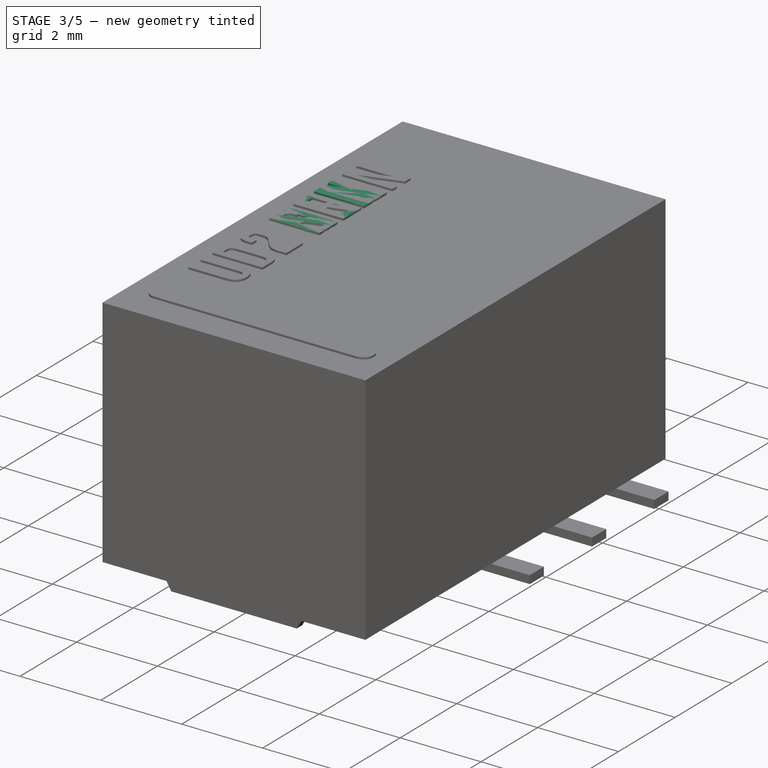
[diagram: stage 3 of 5 — iso view after this stage's code; geometry added in this stage tinted green]
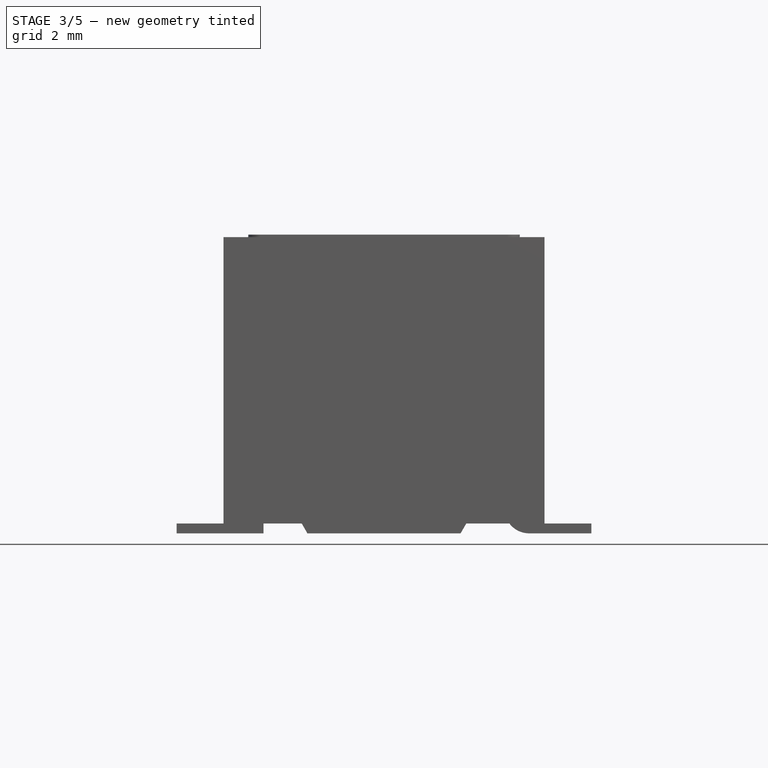
[diagram: stage 3 of 5 — front view after this stage's code; geometry added in this stage tinted green]
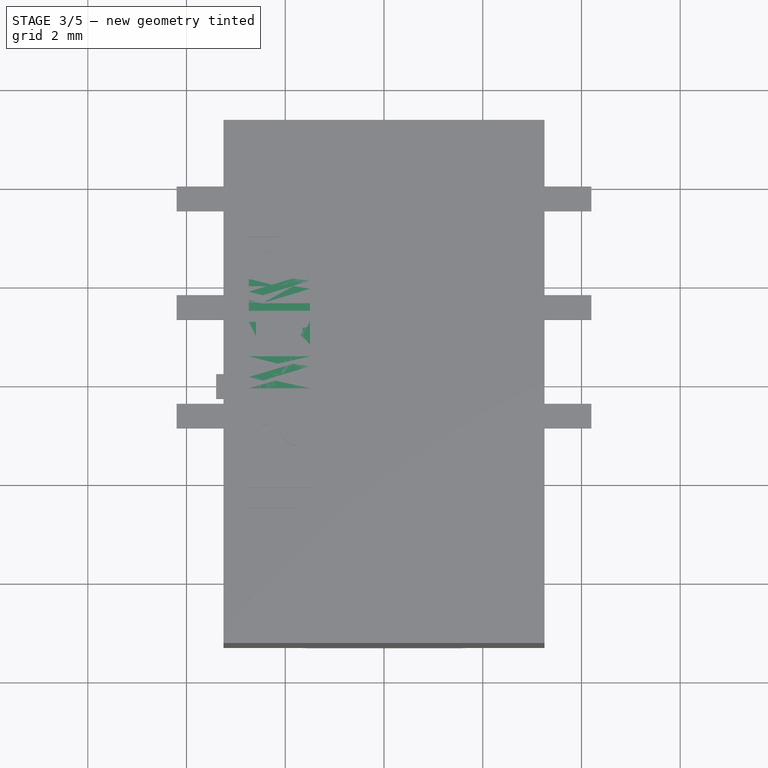
[diagram: stage 3 of 5 — top view after this stage's code; geometry added in this stage tinted green]
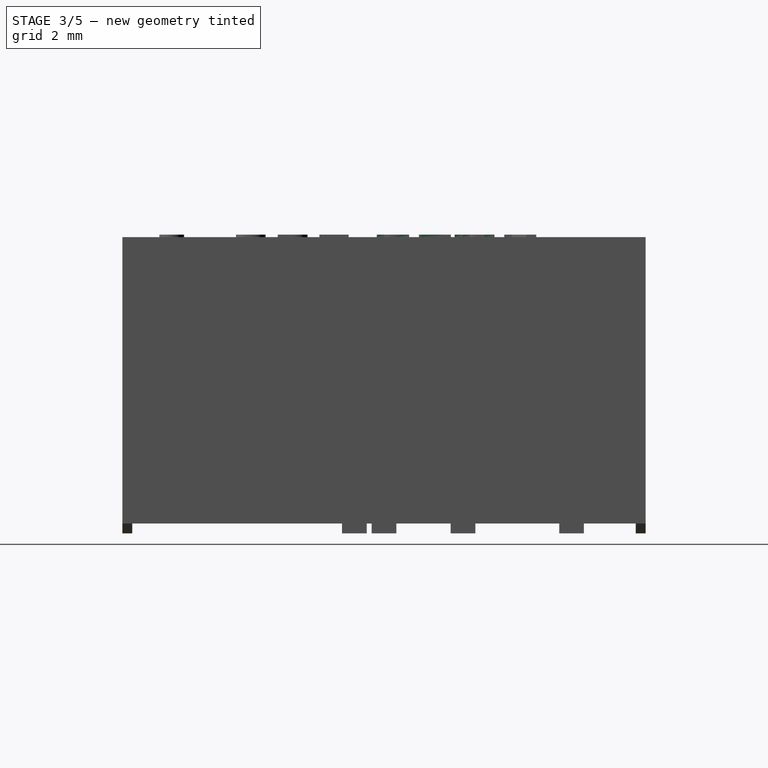
[diagram: stage 3 of 5 — right view after this stage's code; geometry added in this stage tinted green]
FEATURE [PartDesign::Body] Body030  label="UD2-NE_Body"
  Group = -> [Sketch035,Pad027,Sketch037,Pocket011,Sketch038,Pocket012,Sketch039,Sketch040,Pad030,Mirrored001,Pad029,Sketch034,Pad025,ShapeString001,Pad026]
  Origin = -> Origin039
  Tip = -> Pad026
FEATURE [App::Part] Part001  label="UD2-NE"
  Group = -> [Body030,Body032,Body034,Body029,Body031,Body033,Array010,Array009]
  Origin = -> Origin037
FEATURE [Sketcher::SketchObject] Sketch043
  MapMode = 5
  Support = -> [XY_Plane044]
  sketch-geometry (4):
    g0: LineSegment StartX=3.25 StartY=-5.3 StartZ=0 EndX=-3.25 EndY=-5.3 EndZ=0
    g1: LineSegment StartX=-3.25 StartY=-5.3 StartZ=0 EndX=-3.25 EndY=5.3 EndZ=0
    g2: LineSegment StartX=-3.25 StartY=5.3 StartZ=0 EndX=3.25 EndY=5.3 EndZ=0
    g3: LineSegment StartX=3.25 StartY=5.3 StartZ=0 EndX=3.25 EndY=-5.3 EndZ=0
  constraints (10):
    c: Coincident(g0,g1)
    c: Coincident(g1,g2)
    c: Coincident(g2,g3)
    c: Coincident(g3,g0)
    c: Horizontal(g0)
    c: Vertical(g1)
    c: Symmetric(g1,g2,g-2)
    c: Symmetric(g2,g0,g-1)
    c: DistanceX(g2,g2) = 6.5
    c: DistanceY(g3,g3) = 10.6
FEATURE [Sketcher::SketchObject] Sketch049
  MapMode = 5
  Placement = pos=(0,0,0) rot=(1,0,0;1.5708rad)
  Support = -> [XZ_Plane041]
  sketch-geometry (7):
    g0: LineSegment StartX=-2.64 StartY=1.2 StartZ=0 EndX=-2.64 EndY=0.2 EndZ=0
    g1: LineSegment StartX=-2.64 StartY=0.2 StartZ=0 EndX=-3.4 EndY=0.2 EndZ=0
    g2: LineSegment StartX=-3.4 StartY=0.2 StartZ=0 EndX=-3.4 EndY=0 EndZ=0
    g3: LineSegment StartX=-3.4 StartY=0 StartZ=0 EndX=-2.44 EndY=0 EndZ=0
    g4: LineSegment StartX=-2.44 StartY=0 StartZ=0 EndX=-2.44 EndY=1.2 EndZ=0
    g5: LineSegment StartX=-2.44 StartY=1.2 StartZ=0 EndX=-2.64 EndY=1.2 EndZ=0
    g6: GeomPoint X=-2.54 Y=1.2 Z=0
  constraints (19):
    c: Vertical(g0)
    c: Coincident(g0,g1)
    c: Horizontal(g1)
    c: Coincident(g1,g2)
    c: PointOnObject(g2,g-1)
    c: Vertical(g2)
    c: Coincident(g2,g3)
    c: Horizontal(g3)
    c: Coincident(g3,g4)
    c: Vertical(g4)
    c: Coincident(g4,g5)
    c: Coincident(g5,g0)
    c: Horizontal(g5)
    c: DistanceY(g2,g2) = 0.2
    c: Symmetric(g0,g4,g6)
    c: DistanceX(g6,g-1) = 2.54
    c: Equal(g5,g2)
    c: DistanceY(g4,g4) = 1.2
    c: DistanceX(g2,g-1) = 3.4
FEATURE [PartDesign::Pad] Pad033
  Length = 0.5
  Length2 = 100
  Midplane = true
  Placement = pos=(0,0,0) rot=(1,0,0;1.5708rad)
  Profile = -> Sketch049
  Type = 0
FEATURE [PartDesign::Fillet] Fillet004
  Base = -> Pad033 [Edge2]
  BaseFeature = -> Pad033
  Placement = pos=(0,0,0) rot=(1,0,0;1.5708rad)
  Radius = 0.25
FEATURE [PartDesign::Pad] Pad035  label="MainPad002"
  Length = 6
  Length2 = 100
  Profile = -> Sketch043
  Type = 0
FEATURE [Sketcher::SketchObject] Sketch050
  ExternalGeometry = -> [Pad035]
  MapMode = 5
  Placement = pos=(-3.25,0,0) rot=(0.57735,-0.57735,-0.57735;2.0944rad)
  Support = -> [Pad035]
  sketch-geometry (4):
    g0: LineSegment StartX=-5.3 StartY=0 StartZ=0 EndX=5.3 EndY=0 EndZ=0
    g1: LineSegment StartX=5.3 StartY=0 StartZ=0 EndX=5.3 EndY=0.2 EndZ=0
    g2: LineSegment StartX=5.3 StartY=0.2 StartZ=0 EndX=-5.3 EndY=0.2 EndZ=0
    g3: LineSegment StartX=-5.3 StartY=0.2 StartZ=0 EndX=-5.3 EndY=0 EndZ=0
  constraints (11):
    c: Coincident(g0,g1)
    c: Coincident(g1,g2)
    c: Coincident(g2,g3)
    c: Coincident(g3,g0)
    c: Horizontal(g0)
    c: Horizontal(g2)
    c: Vertical(g1)
    c: Vertical(g3)
    c: Coincident(g0,g-3)
    c: PointOnObject(g1,g-4)
    c: DistanceY(g1,g1) = 0.2
FEATURE [PartDesign::Pocket] Pocket016  label="BottomPocket005"
  BaseFeature = -> Pad035
  Length = 5
  Length2 = 100
  Profile = -> Sketch050
  Type = 1
FEATURE [Sketcher::SketchObject] Sketch044
  ExternalGeometry = -> [Pocket016]
  MapMode = 5
  Placement = pos=(0,0,0.2) rot=(1,0,0;3.14159rad)
  Support = -> [Pocket016]
  sketch-geometry (4):
    g0: LineSegment StartX=-3.05 StartY=5.1 StartZ=0 EndX=3.05 EndY=5.1 EndZ=0
    g1: LineSegment StartX=3.05 StartY=5.1 StartZ=0 EndX=3.05 EndY=-5.1 EndZ=0
    g2: LineSegment StartX=3.05 StartY=-5.1 StartZ=0 EndX=-3.05 EndY=-5.1 EndZ=0
    g3: LineSegment StartX=-3.05 StartY=-5.1 StartZ=0 EndX=-3.05 EndY=5.1 EndZ=0
  constraints (10):
    c: Coincident(g0,g1)
    c: Coincident(g1,g2)
    c: Coincident(g2,g3)
    c: Coincident(g3,g0)
    c: Horizontal(g2)
    c: Vertical(g3)
    c: Symmetric(g0,g0,g-2)
    c: Symmetric(g0,g1,g-1)
    c: DistanceX(g0,g-3) = 0.2
    c: DistanceY(g0,g-3) = 0.2
FEATURE [PartDesign::Pocket] Pocket014  label="BottomPocket004"
  BaseFeature = -> Pocket016
  Length = 0.1
  Length2 = 100
  Profile = -> Sketch044
  Type = 0
FEATURE [Sketcher::SketchObject] Sketch045
  MapMode = 5
  Placement = pos=(0,0,0.3) rot=(1,0,0;3.14159rad)
  Support = -> [Pocket014]
  sketch-geometry (8):
    g0: LineSegment StartX=-1.48597 StartY=4.5632 StartZ=0 EndX=1.48597 EndY=4.5632 EndZ=0
    g1: LineSegment StartX=2.2229 StartY=3.82626 StartZ=0 EndX=2.2229 EndY=-3.82626 EndZ=0
    g2: LineSegment StartX=1.48597 StartY=-4.5632 StartZ=0 EndX=-1.48597 EndY=-4.5632 EndZ=0
    g3: LineSegment StartX=-2.2229 StartY=-3.82626 StartZ=0 EndX=-2.2229 EndY=3.82626 EndZ=0
    g4: ArcOfCircle CenterX=-1.48597 CenterY=3.82626 CenterZ=0 NormalX=0 NormalY=0 NormalZ=1 AngleXU=0 Radius=0.736932 StartAngle=1.5708 EndAngle=3.14159
    g5: ArcOfCircle CenterX=1.48597 CenterY=3.82626 CenterZ=0 NormalX=0 NormalY=0 NormalZ=1 AngleXU=0 Radius=0.736932 StartAngle=0 EndAngle=1.5708
    g6: ArcOfCircle CenterX=1.48597 CenterY=-3.82626 CenterZ=0 NormalX=0 NormalY=0 NormalZ=1 AngleXU=0 Radius=0.736932 StartAngle=4.71239 EndAngle=6.28319
    g7: ArcOfCircle CenterX=-1.48597 CenterY=-3.82626 CenterZ=0 NormalX=0 NormalY=0 NormalZ=1 AngleXU=0 Radius=0.736932 StartAngle=3.14159 EndAngle=4.71239
  constraints (15):
    c: Horizontal(g0)
    c: Horizontal(g2)
    c: Vertical(g1)
    c: Vertical(g3)
    c: Tangent(g0,g4) = 1.5708
    c: Tangent(g3,g4) = 1.5708
    c: Tangent(g0,g5) = 1.5708
    c: Tangent(g1,g5) = 1.5708
    c: Tangent(g1,g6) = 1.5708
    c: Tangent(g2,g6) = 1.5708
    c: Tangent(g2,g7) = 1.5708
    c: Tangent(g3,g7) = 1.5708
    c: Equal(g7,g6)
    c: Symmetric(g3,g1,g-2)
    c: Symmetric(g0,g2,g-1)
FEATURE [Sketcher::SketchObject] Sketch048
  MapMode = 5
  Placement = pos=(0,-5.3,0) rot=(1,0,0;1.5708rad)
  Support = -> [Pocket014]
  sketch-geometry (4):
    g0: LineSegment StartX=-1.55163 StartY=0 StartZ=0 EndX=-1.6671 EndY=0.2 EndZ=0
    g1: LineSegment StartX=-1.6671 StartY=0.2 StartZ=0 EndX=1.6671 EndY=0.2 EndZ=0
    g2: LineSegment StartX=1.6671 StartY=0.2 StartZ=0 EndX=1.55163 EndY=0 EndZ=0
    g3: LineSegment StartX=1.55163 StartY=0 StartZ=0 EndX=-1.55163 EndY=0 EndZ=0
  constraints (10):
    c: Coincident(g0,g1)
    c: Coincident(g1,g2)
    c: PointOnObject(g2,g-1)
    c: Coincident(g2,g3)
    c: Coincident(g3,g0)
    c: Symmetric(g0,g1,g-2)
    c: Symmetric(g0,g2,g-2)
    c: Equal(g0,g2)
    c: DistanceY(g-1,g0) = 0.2
    c: Angle(g3,g0) = 2.0944
FEATURE [PartDesign::Pad] Pad031
  BaseFeature = -> Pocket014
  Length = 0.2
  Length2 = 100
  Profile = -> Sketch048
  Refine = true
  Reversed = true
  Type = 0
FEATURE [PartDesign::Mirrored] Mirrored002
  BaseFeature = -> Pad031
  MirrorPlane = -> XZ_Plane042
  Originals = -> [Pad031]
  Refine = true
FEATURE [PartDesign::Pad] Pad032  label="BottomPad002"
  BaseFeature = -> Mirrored002
  Length = 0.05
  Length2 = 100
  Profile = -> Sketch045
  Type = 0
FEATURE [Sketcher::SketchObject] Sketch042
  ExternalGeometry = -> [Pad032]
  MapMode = 5
  Placement = pos=(0,0,6) rot=(0,0,1;0rad)
  Support = -> [Pad032]
  sketch-geometry (4):
    g0: ArcOfCircle CenterX=-2.5 CenterY=-4.3 CenterZ=0 NormalX=0 NormalY=0 NormalZ=1 AngleXU=0 Radius=0.25 StartAngle=1.5708 EndAngle=4.71239
    g1: ArcOfCircle CenterX=2.5 CenterY=-4.3 CenterZ=0 NormalX=0 NormalY=0 NormalZ=1 AngleXU=0 Radius=0.25 StartAngle=4.71239 EndAngle=7.85398
    g2: LineSegment StartX=-2.5 StartY=-4.55 StartZ=0 EndX=2.5 EndY=-4.55 EndZ=0
    g3: LineSegment StartX=-2.5 StartY=-4.05 StartZ=0 EndX=2.5 EndY=-4.05 EndZ=0
  constraints (9):
    c: Tangent(g0,g3) = 1.5708
    c: Tangent(g0,g2) = -1.5708
    c: Tangent(g2,g1) = -1.5708
    c: Tangent(g3,g1) = 1.5708
    c: Horizontal(g2)
    c: Symmetric(g1,g0,g-2)
    c: DistanceY(g1,g1) = 0.5
    c: DistanceX(g-3,g0) = 0.75
    c: DistanceY(g-4,g0) = 1
FEATURE [PartDesign::Pad] Pad034  label="CoilMarkingPad002"
  BaseFeature = -> Pad032
  Length = 0.05
  Length2 = 100
  Profile = -> Sketch042
  Type = 0
FEATURE [Part::Part2DObjectPython] ShapeString002  # Draft 2D object (typed FeaturePython)
  AttachmentOffset = pos=(-1,-1,0) rot=(0,0,-1;1.5708rad)
  FontFile = <userpath>/Desktop/GitHub/freecad-projects/00-fonts/coolvetica condensed rg.ttf
  MapMode = 6
  Placement = pos=(-1.5,-3.05,6) rot=(0,0,1;1.5708rad)
  Size = 0.75
  String = UD2 NUN
  Support = -> [Pad034]
  Tracking = 0.125
FEATURE [PartDesign::Pad] Pad036  label="ShapeStringPad002"
  BaseFeature = -> Pad034
  Length = 0.05
  Length2 = 100
  Profile = -> ShapeString002
  Refine = true
  Type = 0
FEATURE [PartDesign::Mirrored] Mirrored003
  MirrorPlane = -> XZ_Plane052
  Originals = -> [Pad037]
  Refine = true
FEATURE [PartDesign::Pad] Pad040  label="BottomPad003"
  BaseFeature = -> Mirrored003
  Length = 0.05
  Length2 = 100
  Profile = -> Sketch052
  Type = 0
FEATURE [Sketcher::SketchObject] Sketch055
  ExternalGeometry = -> [Pad040]
  MapMode = 5
  Placement = pos=(0,0,6) rot=(0,0,1;0rad)
  Support = -> [Pad040]
  sketch-geometry (4):
    g0: ArcOfCircle CenterX=-2.5 CenterY=-4.3 CenterZ=0 NormalX=0 NormalY=0 NormalZ=1 AngleXU=0 Radius=0.25 StartAngle=1.5708 EndAngle=4.71239
    g1: ArcOfCircle CenterX=2.5 CenterY=-4.3 CenterZ=0 NormalX=0 NormalY=0 NormalZ=1 AngleXU=0 Radius=0.25 StartAngle=4.71239 EndAngle=7.85398
    g2: LineSegment StartX=-2.5 StartY=-4.55 StartZ=0 EndX=2.5 EndY=-4.55 EndZ=0
    g3: LineSegment StartX=-2.5 StartY=-4.05 StartZ=0 EndX=2.5 EndY=-4.05 EndZ=0
  constraints (9):
    c: Tangent(g0,g3) = 1.5708
    c: Tangent(g0,g2) = -1.5708
    c: Tangent(g2,g1) = -1.5708
    c: Tangent(g3,g1) = 1.5708
    c: Horizontal(g2)
    c: Symmetric(g1,g0,g-2)
    c: DistanceY(g1,g1) = 0.5
    c: DistanceX(g-3,g0) = 0.75
    c: DistanceY(g-4,g0) = 1
FEATURE [PartDesign::Pad] Pad038  label="CoilMarkingPad003"
  BaseFeature = -> Pad040
  Length = 0.05
  Length2 = 100
  Profile = -> Sketch055
  Type = 0
FEATURE [Part::Part2DObjectPython] ShapeString003  # Draft 2D object (typed FeaturePython)
  AttachmentOffset = pos=(-1,-1,0) rot=(0,0,-1;1.5708rad)
  FontFile = <userpath>/Desktop/GitHub/freecad-projects/00-fonts/coolvetica condensed rg.ttf
  MapMode = 6
  Placement = pos=(-1.5,-3.05,6) rot=(0,0,1;1.5708rad)
  Size = 0.75
  String = UD2 NEN
  Support = -> [Pad038]
  Tracking = 0.125
FEATURE [PartDesign::Pad] Pad039  label="ShapeStringPad003"
  BaseFeature = -> Pad038
  Length = 0.05
  Length2 = 100
  Profile = -> ShapeString003
  Refine = true
  Type = 0
FEATURE [PartDesign::Body] Body044
  Group = -> [Sketch059,Pad041,Fillet006,Fillet007]
  Origin = -> Origin049
  Tip = -> Fillet007
FEATURE [PartDesign::FeatureBase] Clone026
  BaseFeature = -> Body044
FEATURE [PartDesign::Body] Body045
  BaseFeature = -> Body044
  Group = -> [Clone026]
  Origin = -> Origin048
  Placement = pos=(0,-3.8,0) rot=(0,0,1;0rad)
  Tip = -> Clone026
FEATURE [PartDesign::FeatureBase] Clone027
  BaseFeature = -> Body045
  Placement = pos=(0,-3.8,0) rot=(0,0,1;0rad)
FEATURE [PartDesign::Body] Body042
  BaseFeature = -> Body045
  Group = -> [Clone027]
  Origin = -> Origin050
  Placement = pos=(0,3.2,0) rot=(0,0,1;0rad)
  Tip = -> Clone027
FEATURE [PartDesign::FeatureBase] Clone029
  BaseFeature = -> Body044
FEATURE [PartDesign::Body] Body041
  BaseFeature = -> Body044
  Group = -> [Clone029]
  Origin = -> Origin053
  Placement = pos=(0,-3.8,0) rot=(0,0,1;3.14159rad)
  Tip = -> Clone029
FEATURE [PartDesign::FeatureBase] Clone028
  BaseFeature = -> Body041
  Placement = pos=(0,-3.8,0) rot=(0,0,1;3.14159rad)
FEATURE [PartDesign::Body] Body043
  BaseFeature = -> Body041
  Group = -> [Clone028]
  Origin = -> Origin051
  Placement = pos=(0,3.2,0) rot=(0,0,1;0rad)
  Tip = -> Clone028
FEATURE [Part::FeaturePython] Array013  # Draft array (typed FeaturePython)
  Angle = 360
  ArrayType = 0
  Axis = (0,0,1)
  Base = -> Body043
  Center = (0,0,0)
  Fuse = false
  IntervalAxis = (0,0,0)
  IntervalX = (1,0,0)
  IntervalY = (0,2.2,0)
  IntervalZ = (0,0,1)
  NumberPolar = 1
  NumberX = 1
  NumberY = 3
  NumberZ = 1
FEATURE [Part::FeaturePython] Array014  # Draft array (typed FeaturePython)
  Angle = 360
  ArrayType = 0
  Axis = (0,0,1)
  Base = -> Body042
  Center = (0,0,0)
  Fuse = false
  IntervalAxis = (0,0,0)
  IntervalX = (1,0,0)
  IntervalY = (0,2.2,0)
  IntervalZ = (0,0,1)
  NumberPolar = 1
  NumberX = 1
  NumberY = 3
  NumberZ = 1
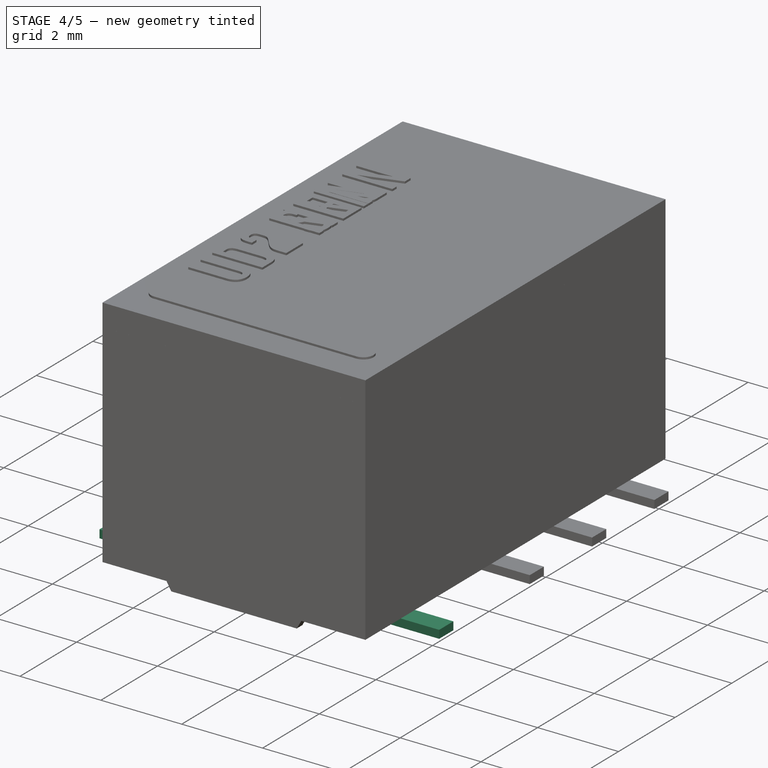
[diagram: stage 4 of 5 — iso view after this stage's code; geometry added in this stage tinted green]
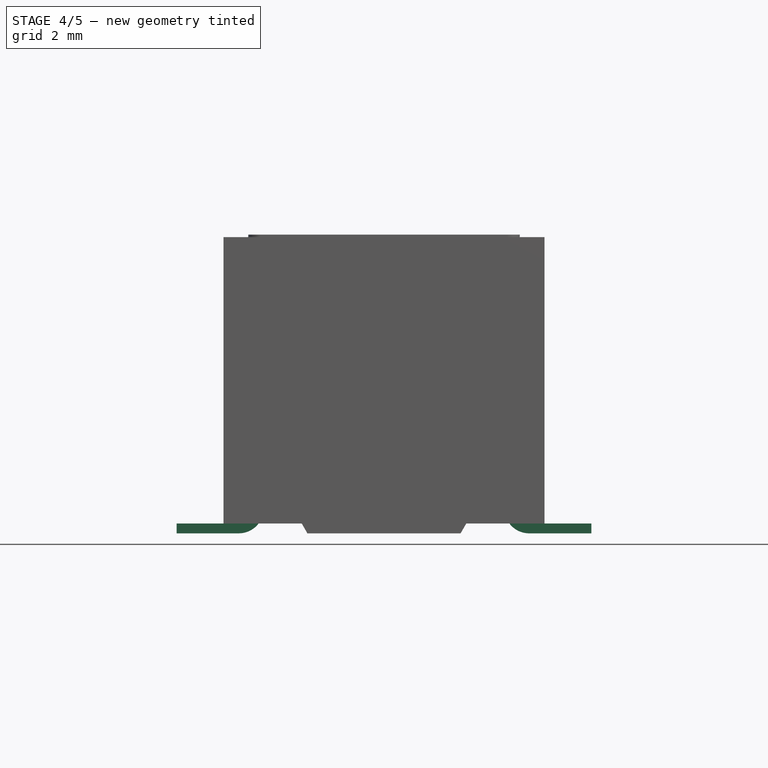
[diagram: stage 4 of 5 — front view after this stage's code; geometry added in this stage tinted green]
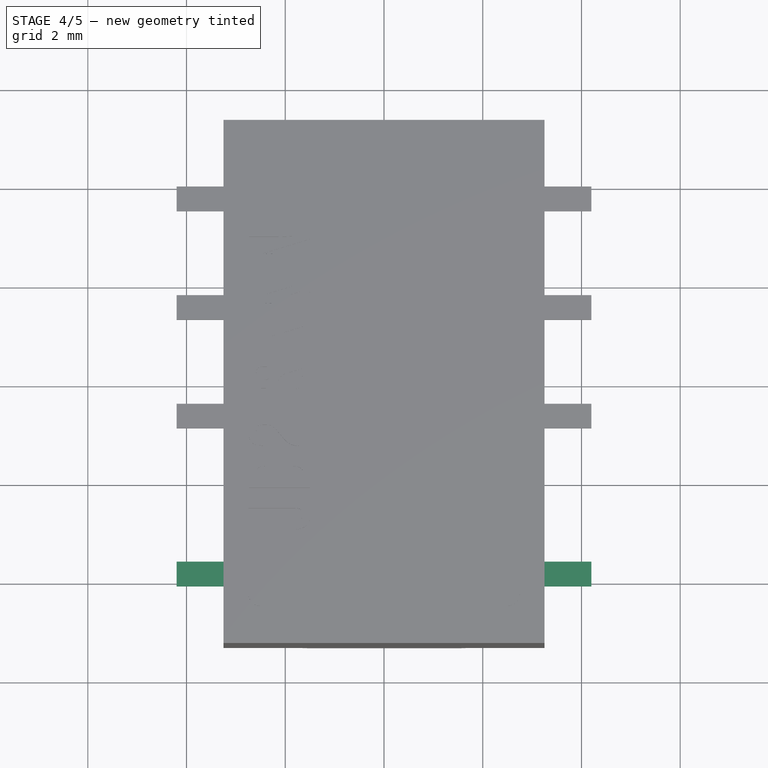
[diagram: stage 4 of 5 — top view after this stage's code; geometry added in this stage tinted green]
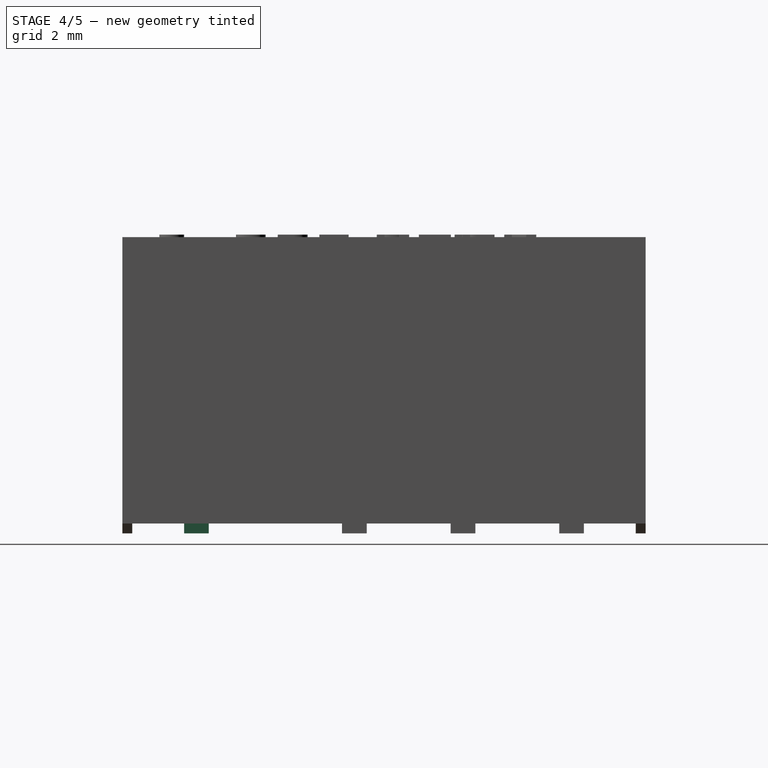
[diagram: stage 4 of 5 — right view after this stage's code; geometry added in this stage tinted green]
FEATURE [PartDesign::Body] Body  label="UD2-NU_Body"
  Group = -> [Sketch,Pad,Sketch003,Pocket,Sketch007,Pocket003,Sketch008,Sketch030,Pad024,Mirrored,Pad004,Sketch010,Pad006,ShapeString,Pad008]
  Origin = -> Origin
  Tip = -> Pad008
FEATURE [App::Part] Part  label="UD2-NU"
  Group = -> [Body,Body001,Body002,Body003,Body027,Body028,Array,Array008]
  Origin = -> Origin001
FEATURE [Sketcher::SketchObject] Sketch035
  MapMode = 5
  Support = -> [XY_Plane039]
  sketch-geometry (4):
    g0: LineSegment StartX=3.25 StartY=-5.3 StartZ=0 EndX=-3.25 EndY=-5.3 EndZ=0
    g1: LineSegment StartX=-3.25 StartY=-5.3 StartZ=0 EndX=-3.25 EndY=5.3 EndZ=0
    g2: LineSegment StartX=-3.25 StartY=5.3 StartZ=0 EndX=3.25 EndY=5.3 EndZ=0
    g3: LineSegment StartX=3.25 StartY=5.3 StartZ=0 EndX=3.25 EndY=-5.3 EndZ=0
  constraints (10):
    c: Coincident(g0,g1)
    c: Coincident(g1,g2)
    c: Coincident(g2,g3)
    c: Coincident(g3,g0)
    c: Horizontal(g0)
    c: Vertical(g1)
    c: Symmetric(g1,g2,g-2)
    c: Symmetric(g2,g0,g-1)
    c: DistanceX(g2,g2) = 6.5
    c: DistanceY(g3,g3) = 10.6
FEATURE [PartDesign::Pad] Pad027  label="MainPad001"
  Length = 5.45
  Length2 = 100
  Profile = -> Sketch035
  Type = 0
FEATURE [Sketcher::SketchObject] Sketch036
  MapMode = 5
  Placement = pos=(0,0,0) rot=(1,0,0;1.5708rad)
  Support = -> [XZ_Plane038]
  sketch-geometry (7):
    g0: LineSegment StartX=-2.64 StartY=1.2 StartZ=0 EndX=-2.64 EndY=0.2 EndZ=0
    g1: LineSegment StartX=-2.64 StartY=0.2 StartZ=0 EndX=-4.2 EndY=0.2 EndZ=0
    g2: LineSegment StartX=-4.2 StartY=0.2 StartZ=0 EndX=-4.2 EndY=0 EndZ=0
    g3: LineSegment StartX=-4.2 StartY=0 StartZ=0 EndX=-2.44 EndY=0 EndZ=0
    g4: LineSegment StartX=-2.44 StartY=0 StartZ=0 EndX=-2.44 EndY=1.2 EndZ=0
    g5: LineSegment StartX=-2.44 StartY=1.2 StartZ=0 EndX=-2.64 EndY=1.2 EndZ=0
    g6: GeomPoint X=-2.54 Y=1.2 Z=0
  constraints (19):
    c: Vertical(g0)
    c: Coincident(g0,g1)
    c: Horizontal(g1)
    c: Coincident(g1,g2)
    c: PointOnObject(g2,g-1)
    c: Vertical(g2)
    c: Coincident(g2,g3)
    c: Horizontal(g3)
    c: Coincident(g3,g4)
    c: Vertical(g4)
    c: Coincident(g4,g5)
    c: Coincident(g5,g0)
    c: Horizontal(g5)
    c: DistanceY(g2,g2) = 0.2
    c: Symmetric(g0,g4,g6)
    c: DistanceX(g6,g-1) = 2.54
    c: Equal(g5,g2)
    c: DistanceY(g4,g4) = 1.2
    c: DistanceX(g2,g-1) = 4.2
FEATURE [PartDesign::Pad] Pad028
  Length = 0.5
  Length2 = 100
  Midplane = true
  Placement = pos=(0,0,0) rot=(1,0,0;1.5708rad)
  Profile = -> Sketch036
  Type = 0
FEATURE [Sketcher::SketchObject] Sketch037
  ExternalGeometry = -> [Pad027]
  MapMode = 5
  Placement = pos=(-3.25,0,0) rot=(0.57735,-0.57735,-0.57735;2.0944rad)
  Support = -> [Pad027]
  sketch-geometry (4):
    g0: LineSegment StartX=-5.3 StartY=0 StartZ=0 EndX=5.3 EndY=0 EndZ=0
    g1: LineSegment StartX=5.3 StartY=0 StartZ=0 EndX=5.3 EndY=0.2 EndZ=0
    g2: LineSegment StartX=5.3 StartY=0.2 StartZ=0 EndX=-5.3 EndY=0.2 EndZ=0
    g3: LineSegment StartX=-5.3 StartY=0.2 StartZ=0 EndX=-5.3 EndY=0 EndZ=0
  constraints (11):
    c: Coincident(g0,g1)
    c: Coincident(g1,g2)
    c: Coincident(g2,g3)
    c: Coincident(g3,g0)
    c: Horizontal(g0)
    c: Horizontal(g2)
    c: Vertical(g1)
    c: Vertical(g3)
    c: Coincident(g0,g-3)
    c: PointOnObject(g1,g-4)
    c: DistanceY(g1,g1) = 0.2
FEATURE [PartDesign::Pocket] Pocket011  label="BottomPocket002"
  BaseFeature = -> Pad027
  Length = 5
  Length2 = 100
  Profile = -> Sketch037
  Type = 1
FEATURE [Sketcher::SketchObject] Sketch038
  ExternalGeometry = -> [Pocket011]
  MapMode = 5
  Placement = pos=(0,0,0.2) rot=(1,0,0;3.14159rad)
  Support = -> [Pocket011]
  sketch-geometry (4):
    g0: LineSegment StartX=-3.05 StartY=5.1 StartZ=0 EndX=3.05 EndY=5.1 EndZ=0
    g1: LineSegment StartX=3.05 StartY=5.1 StartZ=0 EndX=3.05 EndY=-5.1 EndZ=0
    g2: LineSegment StartX=3.05 StartY=-5.1 StartZ=0 EndX=-3.05 EndY=-5.1 EndZ=0
    g3: LineSegment StartX=-3.05 StartY=-5.1 StartZ=0 EndX=-3.05 EndY=5.1 EndZ=0
  constraints (10):
    c: Coincident(g0,g1)
    c: Coincident(g1,g2)
    c: Coincident(g2,g3)
    c: Coincident(g3,g0)
    c: Horizontal(g2)
    c: Vertical(g3)
    c: Symmetric(g0,g0,g-2)
    c: Symmetric(g0,g1,g-1)
    c: DistanceX(g0,g-3) = 0.2
    c: DistanceY(g0,g-3) = 0.2
FEATURE [PartDesign::Pocket] Pocket012  label="BottomPocket003"
  BaseFeature = -> Pocket011
  Length = 0.1
  Length2 = 100
  Profile = -> Sketch038
  Type = 0
FEATURE [Sketcher::SketchObject] Sketch039
  MapMode = 5
  Placement = pos=(0,0,0.3) rot=(1,0,0;3.14159rad)
  Support = -> [Pocket012]
  sketch-geometry (8):
    g0: LineSegment StartX=-1.48597 StartY=4.5632 StartZ=0 EndX=1.48597 EndY=4.5632 EndZ=0
    g1: LineSegment StartX=2.2229 StartY=3.82626 StartZ=0 EndX=2.2229 EndY=-3.82626 EndZ=0
    g2: LineSegment StartX=1.48597 StartY=-4.5632 StartZ=0 EndX=-1.48597 EndY=-4.5632 EndZ=0
    g3: LineSegment StartX=-2.2229 StartY=-3.82626 StartZ=0 EndX=-2.2229 EndY=3.82626 EndZ=0
    g4: ArcOfCircle CenterX=-1.48597 CenterY=3.82626 CenterZ=0 NormalX=0 NormalY=0 NormalZ=1 AngleXU=0 Radius=0.736932 StartAngle=1.5708 EndAngle=3.14159
    g5: ArcOfCircle CenterX=1.48597 CenterY=3.82626 CenterZ=0 NormalX=0 NormalY=0 NormalZ=1 AngleXU=0 Radius=0.736932 StartAngle=0 EndAngle=1.5708
    g6: ArcOfCircle CenterX=1.48597 CenterY=-3.82626 CenterZ=0 NormalX=0 NormalY=0 NormalZ=1 AngleXU=0 Radius=0.736932 StartAngle=4.71239 EndAngle=6.28319
    g7: ArcOfCircle CenterX=-1.48597 CenterY=-3.82626 CenterZ=0 NormalX=0 NormalY=0 NormalZ=1 AngleXU=0 Radius=0.736932 StartAngle=3.14159 EndAngle=4.71239
  constraints (15):
    c: Horizontal(g0)
    c: Horizontal(g2)
    c: Vertical(g1)
    c: Vertical(g3)
    c: Tangent(g0,g4) = 1.5708
    c: Tangent(g3,g4) = 1.5708
    c: Tangent(g0,g5) = 1.5708
    c: Tangent(g1,g5) = 1.5708
    c: Tangent(g1,g6) = 1.5708
    c: Tangent(g2,g6) = 1.5708
    c: Tangent(g2,g7) = 1.5708
    c: Tangent(g3,g7) = 1.5708
    c: Equal(g7,g6)
    c: Symmetric(g3,g1,g-2)
    c: Symmetric(g0,g2,g-1)
FEATURE [Sketcher::SketchObject] Sketch040
  MapMode = 5
  Placement = pos=(0,-5.3,0) rot=(1,0,0;1.5708rad)
  Support = -> [Pocket012]
  sketch-geometry (4):
    g0: LineSegment StartX=-1.55163 StartY=0 StartZ=0 EndX=-1.6671 EndY=0.2 EndZ=0
    g1: LineSegment StartX=-1.6671 StartY=0.2 StartZ=0 EndX=1.6671 EndY=0.2 EndZ=0
    g2: LineSegment StartX=1.6671 StartY=0.2 StartZ=0 EndX=1.55163 EndY=0 EndZ=0
    g3: LineSegment StartX=1.55163 StartY=0 StartZ=0 EndX=-1.55163 EndY=0 EndZ=0
  constraints (10):
    c: Coincident(g0,g1)
    c: Coincident(g1,g2)
    c: PointOnObject(g2,g-1)
    c: Coincident(g2,g3)
    c: Coincident(g3,g0)
    c: Symmetric(g0,g1,g-2)
    c: Symmetric(g0,g2,g-2)
    c: Equal(g0,g2)
    c: DistanceY(g-1,g0) = 0.2
    c: Angle(g3,g0) = 2.0944
FEATURE [PartDesign::Pad] Pad030
  BaseFeature = -> Pocket012
  Length = 0.2
  Length2 = 100
  Profile = -> Sketch040
  Refine = true
  Reversed = true
  Type = 0
FEATURE [PartDesign::Mirrored] Mirrored001
  BaseFeature = -> Pad030
  MirrorPlane = -> XZ_Plane040
  Originals = -> [Pad030]
  Refine = true
FEATURE [PartDesign::Pad] Pad029  label="BottomPad001"
  BaseFeature = -> Mirrored001
  Length = 0.05
  Length2 = 100
  Profile = -> Sketch039
  Type = 0
FEATURE [Sketcher::SketchObject] Sketch034
  ExternalGeometry = -> [Pad029]
  MapMode = 5
  Placement = pos=(0,0,5.45) rot=(0,0,1;0rad)
  Support = -> [Pad029]
  sketch-geometry (4):
    g0: ArcOfCircle CenterX=-2.5 CenterY=-4.3 CenterZ=0 NormalX=0 NormalY=0 NormalZ=1 AngleXU=0 Radius=0.25 StartAngle=1.5708 EndAngle=4.71239
    g1: ArcOfCircle CenterX=2.5 CenterY=-4.3 CenterZ=0 NormalX=0 NormalY=0 NormalZ=1 AngleXU=0 Radius=0.25 StartAngle=4.71239 EndAngle=7.85398
    g2: LineSegment StartX=-2.5 StartY=-4.55 StartZ=0 EndX=2.5 EndY=-4.55 EndZ=0
    g3: LineSegment StartX=-2.5 StartY=-4.05 StartZ=0 EndX=2.5 EndY=-4.05 EndZ=0
  constraints (9):
    c: Tangent(g0,g3) = 1.5708
    c: Tangent(g0,g2) = -1.5708
    c: Tangent(g2,g1) = -1.5708
    c: Tangent(g3,g1) = 1.5708
    c: Horizontal(g2)
    c: Symmetric(g1,g0,g-2)
    c: DistanceY(g1,g1) = 0.5
    c: DistanceX(g-3,g0) = 0.75
    c: DistanceY(g-4,g0) = 1
FEATURE [PartDesign::Pad] Pad025  label="CoilMarkingPad001"
  BaseFeature = -> Pad029
  Length = 0.05
  Length2 = 100
  Profile = -> Sketch034
  Type = 0
FEATURE [PartDesign::Fillet] Fillet003
  Base = -> Pad028 [Edge2]
  BaseFeature = -> Pad028
  Placement = pos=(0,0,0) rot=(1,0,0;1.5708rad)
  Radius = 0.25
FEATURE [PartDesign::Fillet] Fillet002
  Base = -> Fillet003 [Edge20]
  BaseFeature = -> Fillet003
  Placement = pos=(0,0,0) rot=(1,0,0;1.5708rad)
  Radius = 0.5
FEATURE [PartDesign::Body] Body032
  Group = -> [Sketch036,Pad028,Fillet003,Fillet002]
  Origin = -> Origin036
  Tip = -> Fillet002
FEATURE [PartDesign::FeatureBase] Clone018
  BaseFeature = -> Body032
FEATURE [PartDesign::FeatureBase] Clone019
  BaseFeature = -> Body032
FEATURE [PartDesign::Body] Body029
  BaseFeature = -> Body032
  Group = -> [Clone019]
  Origin = -> Origin038
  Placement = pos=(0,-3.8,0) rot=(0,0,1;0rad)
  Tip = -> Clone019
FEATURE [PartDesign::FeatureBase] Clone021
  BaseFeature = -> Body029
  Placement = pos=(0,-3.8,0) rot=(0,0,1;0rad)
FEATURE [PartDesign::Body] Body034
  BaseFeature = -> Body032
  Group = -> [Clone018]
  Origin = -> Origin035
  Placement = pos=(0,-3.8,0) rot=(0,0,1;3.14159rad)
  Tip = -> Clone018
FEATURE [PartDesign::FeatureBase] Clone020
  BaseFeature = -> Body034
  Placement = pos=(0,-3.8,0) rot=(0,0,1;3.14159rad)
FEATURE [PartDesign::Fillet] Fillet005
  Base = -> Fillet004 [Edge20]
  BaseFeature = -> Fillet004
  Placement = pos=(0,0,0) rot=(1,0,0;1.5708rad)
  Radius = 0.5
FEATURE [PartDesign::Body] Body039
  Group = -> [Sketch049,Pad033,Fillet004,Fillet005]
  Origin = -> Origin042
  Tip = -> Fillet005
FEATURE [PartDesign::FeatureBase] Clone024
  BaseFeature = -> Body039
FEATURE [PartDesign::FeatureBase] Clone025
  BaseFeature = -> Body039
FEATURE [PartDesign::Body] Body035
  BaseFeature = -> Body039
  Group = -> [Clone025]
  Origin = -> Origin041
  Placement = pos=(0,-3.8,0) rot=(0,0,1;0rad)
  Tip = -> Clone025
FEATURE [PartDesign::FeatureBase] Clone023
  BaseFeature = -> Body035
  Placement = pos=(0,-3.8,0) rot=(0,0,1;0rad)
FEATURE [PartDesign::Body] Body037
  Group = -> [Clone023]
  Origin = -> Origin044
  Placement = pos=(0,3.2,0) rot=(0,0,1;0rad)
  Tip = -> Clone023
FEATURE [Part::FeaturePython] Array011  # Draft array (typed FeaturePython)
  Angle = 360
  ArrayType = 0
  Axis = (0,0,1)
  Base = -> Body037
  Center = (0,0,0)
  Fuse = false
  IntervalAxis = (0,0,0)
  IntervalX = (1,0,0)
  IntervalY = (0,2.2,0)
  IntervalZ = (0,0,1)
  NumberPolar = 1
  NumberX = 1
  NumberY = 3
  NumberZ = 1
FEATURE [PartDesign::Body] Body040
  BaseFeature = -> Body039
  Group = -> [Clone024]
  Origin = -> Origin046
  Placement = pos=(0,-3.8,0) rot=(0,0,1;3.14159rad)
  Tip = -> Clone024
FEATURE [PartDesign::FeatureBase] Clone022
  BaseFeature = -> Body040
  Placement = pos=(0,-3.8,0) rot=(0,0,1;3.14159rad)
FEATURE [PartDesign::Body] Body038
  Group = -> [Clone022]
  Origin = -> Origin045
  Placement = pos=(0,3.2,0) rot=(0,0,1;0rad)
  Tip = -> Clone022
FEATURE [Part::FeaturePython] Array012  # Draft array (typed FeaturePython)
  Angle = 360
  ArrayType = 0
  Axis = (0,0,1)
  Base = -> Body038
  Center = (0,0,0)
  Fuse = false
  IntervalAxis = (0,0,0)
  IntervalX = (1,0,0)
  IntervalY = (0,2.2,0)
  IntervalZ = (0,0,1)
  NumberPolar = 1
  NumberX = 1
  NumberY = 3
  NumberZ = 1
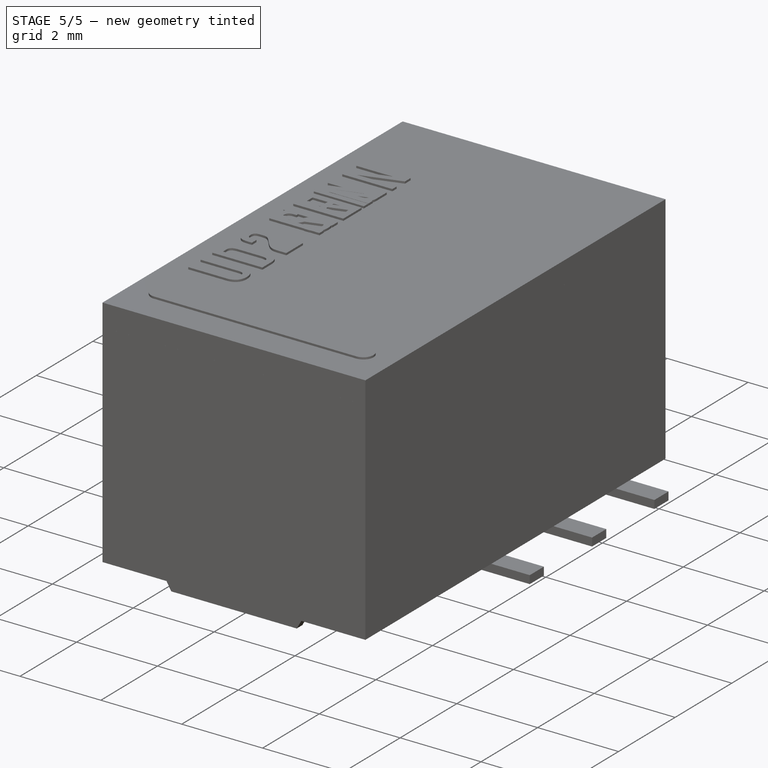
[diagram: stage 5 of 5 — iso view after this stage's code; geometry added in this stage tinted green]
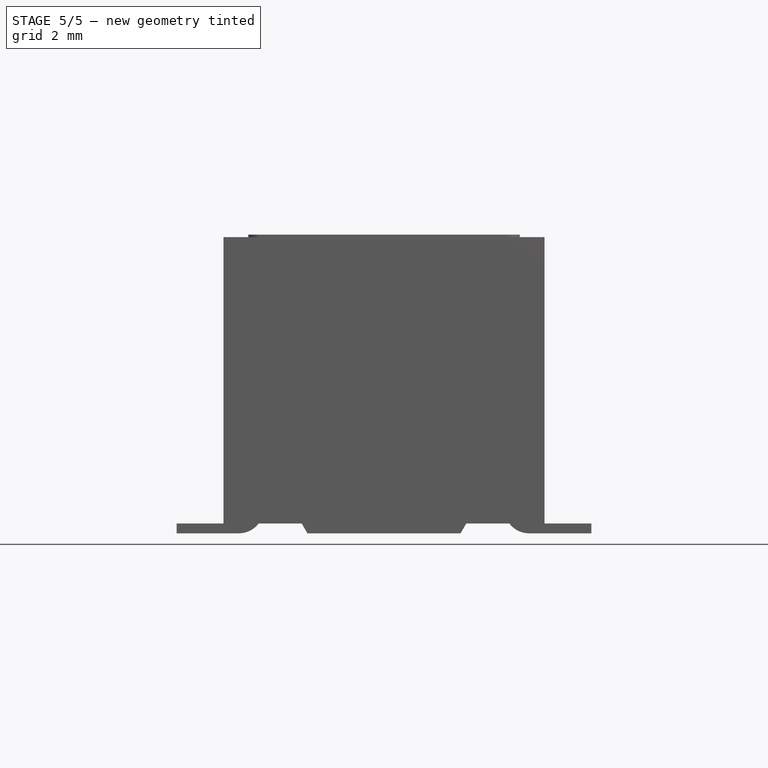
[diagram: stage 5 of 5 — front view after this stage's code; geometry added in this stage tinted green]
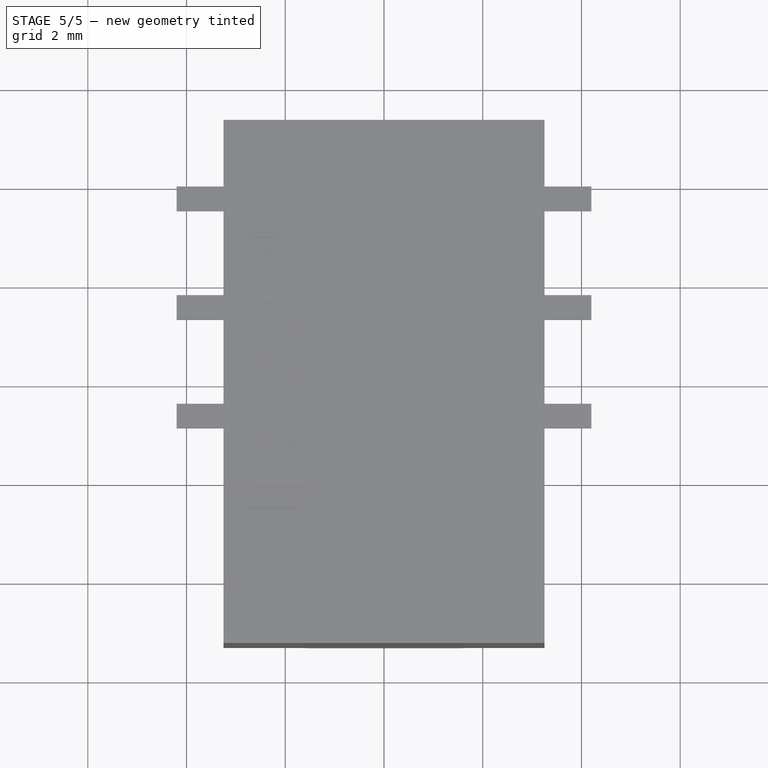
[diagram: stage 5 of 5 — top view after this stage's code; geometry added in this stage tinted green]
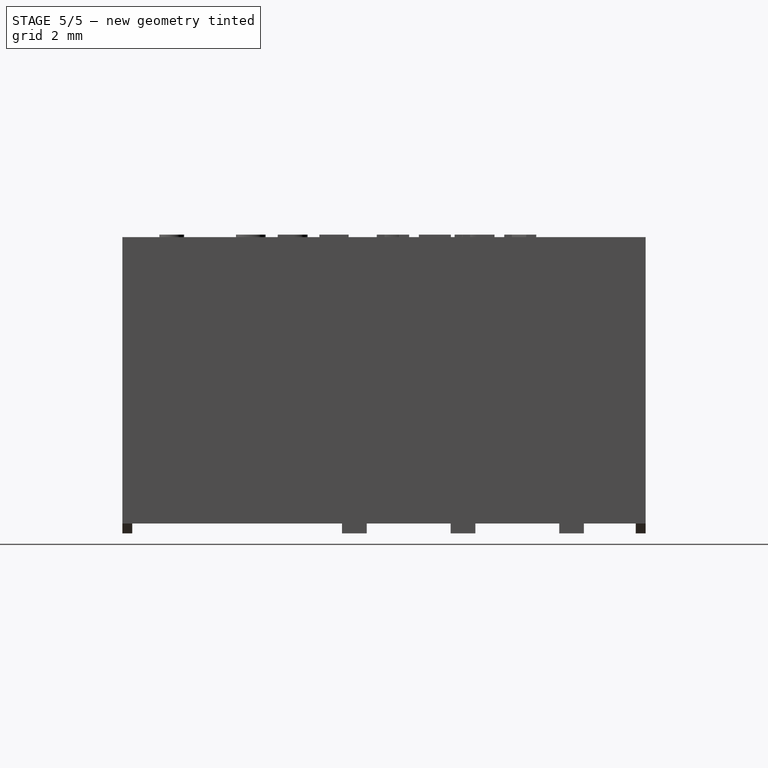
[diagram: stage 5 of 5 — right view after this stage's code; geometry added in this stage tinted green]
FEATURE [Sketcher::SketchObject] Sketch
  MapMode = 5
  Support = -> [XY_Plane]
  sketch-geometry (4):
    g0: LineSegment StartX=3.25 StartY=-5.3 StartZ=0 EndX=-3.25 EndY=-5.3 EndZ=0
    g1: LineSegment StartX=-3.25 StartY=-5.3 StartZ=0 EndX=-3.25 EndY=5.3 EndZ=0
    g2: LineSegment StartX=-3.25 StartY=5.3 StartZ=0 EndX=3.25 EndY=5.3 EndZ=0
    g3: LineSegment StartX=3.25 StartY=5.3 StartZ=0 EndX=3.25 EndY=-5.3 EndZ=0
  constraints (10):
    c: Coincident(g0,g1)
    c: Coincident(g1,g2)
    c: Coincident(g2,g3)
    c: Coincident(g3,g0)
    c: Horizontal(g0)
    c: Vertical(g1)
    c: Symmetric(g1,g2,g-2)
    c: Symmetric(g2,g0,g-1)
    c: DistanceX(g2,g2) = 6.5
    c: DistanceY(g3,g3) = 10.6
FEATURE [PartDesign::Pad] Pad  label="MainPad"
  Length = 5.45
  Length2 = 100
  Profile = -> Sketch
  Type = 0
FEATURE [Sketcher::SketchObject] Sketch003
  ExternalGeometry = -> [Pad]
  MapMode = 5
  Placement = pos=(-3.25,0,0) rot=(0.57735,-0.57735,-0.57735;2.0944rad)
  Support = -> [Pad]
  sketch-geometry (4):
    g0: LineSegment StartX=-5.3 StartY=0 StartZ=0 EndX=5.3 EndY=0 EndZ=0
    g1: LineSegment StartX=5.3 StartY=0 StartZ=0 EndX=5.3 EndY=0.2 EndZ=0
    g2: LineSegment StartX=5.3 StartY=0.2 StartZ=0 EndX=-5.3 EndY=0.2 EndZ=0
    g3: LineSegment StartX=-5.3 StartY=0.2 StartZ=0 EndX=-5.3 EndY=0 EndZ=0
  constraints (11):
    c: Coincident(g0,g1)
    c: Coincident(g1,g2)
    c: Coincident(g2,g3)
    c: Coincident(g3,g0)
    c: Horizontal(g0)
    c: Horizontal(g2)
    c: Vertical(g1)
    c: Vertical(g3)
    c: Coincident(g0,g-3)
    c: PointOnObject(g1,g-4)
    c: DistanceY(g1,g1) = 0.2
FEATURE [PartDesign::Pocket] Pocket  label="BottomPocket"
  BaseFeature = -> Pad
  Length = 5
  Length2 = 100
  Profile = -> Sketch003
  Type = 1
FEATURE [Sketcher::SketchObject] Sketch007
  ExternalGeometry = -> [Pocket]
  MapMode = 5
  Placement = pos=(0,0,0.2) rot=(1,0,0;3.14159rad)
  Support = -> [Pocket]
  sketch-geometry (4):
    g0: LineSegment StartX=-3.05 StartY=5.1 StartZ=0 EndX=3.05 EndY=5.1 EndZ=0
    g1: LineSegment StartX=3.05 StartY=5.1 StartZ=0 EndX=3.05 EndY=-5.1 EndZ=0
    g2: LineSegment StartX=3.05 StartY=-5.1 StartZ=0 EndX=-3.05 EndY=-5.1 EndZ=0
    g3: LineSegment StartX=-3.05 StartY=-5.1 StartZ=0 EndX=-3.05 EndY=5.1 EndZ=0
  constraints (10):
    c: Coincident(g0,g1)
    c: Coincident(g1,g2)
    c: Coincident(g2,g3)
    c: Coincident(g3,g0)
    c: Horizontal(g2)
    c: Vertical(g3)
    c: Symmetric(g0,g0,g-2)
    c: Symmetric(g0,g1,g-1)
    c: DistanceX(g0,g-3) = 0.2
    c: DistanceY(g0,g-3) = 0.2
FEATURE [PartDesign::Pocket] Pocket003  label="BottomPocket001"
  BaseFeature = -> Pocket
  Length = 0.1
  Length2 = 100
  Profile = -> Sketch007
  Type = 0
FEATURE [Sketcher::SketchObject] Sketch008
  MapMode = 5
  Placement = pos=(0,0,0.3) rot=(1,0,0;3.14159rad)
  Support = -> [Pocket003]
  sketch-geometry (8):
    g0: LineSegment StartX=-1.48597 StartY=4.5632 StartZ=0 EndX=1.48597 EndY=4.5632 EndZ=0
    g1: LineSegment StartX=2.2229 StartY=3.82626 StartZ=0 EndX=2.2229 EndY=-3.82626 EndZ=0
    g2: LineSegment StartX=1.48597 StartY=-4.5632 StartZ=0 EndX=-1.48597 EndY=-4.5632 EndZ=0
    g3: LineSegment StartX=-2.2229 StartY=-3.82626 StartZ=0 EndX=-2.2229 EndY=3.82626 EndZ=0
    g4: ArcOfCircle CenterX=-1.48597 CenterY=3.82626 CenterZ=0 NormalX=0 NormalY=0 NormalZ=1 AngleXU=0 Radius=0.736932 StartAngle=1.5708 EndAngle=3.14159
    g5: ArcOfCircle CenterX=1.48597 CenterY=3.82626 CenterZ=0 NormalX=0 NormalY=0 NormalZ=1 AngleXU=0 Radius=0.736932 StartAngle=0 EndAngle=1.5708
    g6: ArcOfCircle CenterX=1.48597 CenterY=-3.82626 CenterZ=0 NormalX=0 NormalY=0 NormalZ=1 AngleXU=0 Radius=0.736932 StartAngle=4.71239 EndAngle=6.28319
    g7: ArcOfCircle CenterX=-1.48597 CenterY=-3.82626 CenterZ=0 NormalX=0 NormalY=0 NormalZ=1 AngleXU=0 Radius=0.736932 StartAngle=3.14159 EndAngle=4.71239
  constraints (15):
    c: Horizontal(g0)
    c: Horizontal(g2)
    c: Vertical(g1)
    c: Vertical(g3)
    c: Tangent(g0,g4) = 1.5708
    c: Tangent(g3,g4) = 1.5708
    c: Tangent(g0,g5) = 1.5708
    c: Tangent(g1,g5) = 1.5708
    c: Tangent(g1,g6) = 1.5708
    c: Tangent(g2,g6) = 1.5708
    c: Tangent(g2,g7) = 1.5708
    c: Tangent(g3,g7) = 1.5708
    c: Equal(g7,g6)
    c: Symmetric(g3,g1,g-2)
    c: Symmetric(g0,g2,g-1)
FEATURE [Sketcher::SketchObject] Sketch011
  MapMode = 5
  Placement = pos=(0,0,0) rot=(1,0,0;1.5708rad)
  Support = -> [XZ_Plane002]
  sketch-geometry (7):
    g0: LineSegment StartX=-2.64 StartY=1.2 StartZ=0 EndX=-2.64 EndY=0.2 EndZ=0
    g1: LineSegment StartX=-2.64 StartY=0.2 StartZ=0 EndX=-4.2 EndY=0.2 EndZ=0
    g2: LineSegment StartX=-4.2 StartY=0.2 StartZ=0 EndX=-4.2 EndY=0 EndZ=0
    g3: LineSegment StartX=-4.2 StartY=0 StartZ=0 EndX=-2.44 EndY=0 EndZ=0
    g4: LineSegment StartX=-2.44 StartY=0 StartZ=0 EndX=-2.44 EndY=1.2 EndZ=0
    g5: LineSegment StartX=-2.44 StartY=1.2 StartZ=0 EndX=-2.64 EndY=1.2 EndZ=0
    g6: GeomPoint X=-2.54 Y=1.2 Z=0
  constraints (19):
    c: Vertical(g0)
    c: Coincident(g0,g1)
    c: Horizontal(g1)
    c: Coincident(g1,g2)
    c: PointOnObject(g2,g-1)
    c: Vertical(g2)
    c: Coincident(g2,g3)
    c: Horizontal(g3)
    c: Coincident(g3,g4)
    c: Vertical(g4)
    c: Coincident(g4,g5)
    c: Coincident(g5,g0)
    c: Horizontal(g5)
    c: DistanceY(g2,g2) = 0.2
    c: Symmetric(g0,g4,g6)
    c: DistanceX(g6,g-1) = 2.54
    c: Equal(g5,g2)
    c: DistanceY(g4,g4) = 1.2
    c: DistanceX(g2,g-1) = 4.2
FEATURE [PartDesign::Pad] Pad007
  Length = 0.5
  Length2 = 100
  Midplane = true
  Placement = pos=(0,0,0) rot=(1,0,0;1.5708rad)
  Profile = -> Sketch011
  Type = 0
FEATURE [PartDesign::Fillet] Fillet
  Base = -> Pad007 [Edge2]
  BaseFeature = -> Pad007
  Placement = pos=(0,0,0) rot=(1,0,0;1.5708rad)
  Radius = 0.25
FEATURE [PartDesign::Fillet] Fillet001
  Base = -> Fillet [Edge20]
  BaseFeature = -> Fillet
  Placement = pos=(0,0,0) rot=(1,0,0;1.5708rad)
  Radius = 0.5
FEATURE [PartDesign::Body] Body001
  Group = -> [Sketch011,Pad007,Fillet,Fillet001]
  Origin = -> Origin002
  Tip = -> Fillet001
FEATURE [PartDesign::FeatureBase] Clone
  BaseFeature = -> Body001
FEATURE [PartDesign::Body] Body002
  BaseFeature = -> Body001
  Group = -> [Clone]
  Origin = -> Origin003
  Placement = pos=(0,-3.8,0) rot=(0,0,1;3.14159rad)
  Tip = -> Clone
FEATURE [PartDesign::FeatureBase] Clone001
  BaseFeature = -> Body001
FEATURE [PartDesign::Body] Body003
  BaseFeature = -> Body001
  Group = -> [Clone001]
  Origin = -> Origin004
  Placement = pos=(0,-3.8,0) rot=(0,0,1;0rad)
  Tip = -> Clone001
FEATURE [PartDesign::FeatureBase] Clone016
  BaseFeature = -> Body002
  Placement = pos=(0,-3.8,0) rot=(0,0,1;3.14159rad)
FEATURE [PartDesign::Body] Body027
  BaseFeature = -> Body002
  Group = -> [Clone016]
  Origin = -> Origin031
  Placement = pos=(0,3.2,0) rot=(0,0,1;0rad)
  Tip = -> Clone016
FEATURE [PartDesign::FeatureBase] Clone017
  BaseFeature = -> Body003
  Placement = pos=(0,-3.8,0) rot=(0,0,1;0rad)
FEATURE [PartDesign::Body] Body028
  BaseFeature = -> Body003
  Group = -> [Clone017]
  Origin = -> Origin032
  Placement = pos=(0,3.2,0) rot=(0,0,1;0rad)
  Tip = -> Clone017
FEATURE [Part::FeaturePython] Array  # Draft array (typed FeaturePython)
  Angle = 360
  ArrayType = 0
  Axis = (0,0,1)
  Base = -> Body027
  Center = (0,0,0)
  Fuse = false
  IntervalAxis = (0,0,0)
  IntervalX = (1,0,0)
  IntervalY = (0,2.2,0)
  IntervalZ = (0,0,1)
  NumberPolar = 1
  NumberX = 1
  NumberY = 3
  NumberZ = 1
FEATURE [Part::FeaturePython] Array008  # Draft array (typed FeaturePython)
  Angle = 360
  ArrayType = 0
  Axis = (0,0,1)
  Base = -> Body028
  Center = (0,0,0)
  Fuse = false
  IntervalAxis = (0,0,0)
  IntervalX = (1,0,0)
  IntervalY = (0,2.2,0)
  IntervalZ = (0,0,1)
  NumberPolar = 1
  NumberX = 1
  NumberY = 3
  NumberZ = 1
FEATURE [Sketcher::SketchObject] Sketch030
  MapMode = 5
  Placement = pos=(0,-5.3,0) rot=(1,0,0;1.5708rad)
  Support = -> [Pocket003]
  sketch-geometry (4):
    g0: LineSegment StartX=-1.55163 StartY=0 StartZ=0 EndX=-1.6671 EndY=0.2 EndZ=0
    g1: LineSegment StartX=-1.6671 StartY=0.2 StartZ=0 EndX=1.6671 EndY=0.2 EndZ=0
    g2: LineSegment StartX=1.6671 StartY=0.2 StartZ=0 EndX=1.55163 EndY=0 EndZ=0
    g3: LineSegment StartX=1.55163 StartY=0 StartZ=0 EndX=-1.55163 EndY=0 EndZ=0
  constraints (10):
    c: Coincident(g0,g1)
    c: Coincident(g1,g2)
    c: PointOnObject(g2,g-1)
    c: Coincident(g2,g3)
    c: Coincident(g3,g0)
    c: Symmetric(g0,g1,g-2)
    c: Symmetric(g0,g2,g-2)
    c: Equal(g0,g2)
    c: DistanceY(g-1,g0) = 0.2
    c: Angle(g3,g0) = 2.0944
FEATURE [PartDesign::Pad] Pad024
  BaseFeature = -> Pocket003
  Length = 0.2
  Length2 = 100
  Profile = -> Sketch030
  Refine = true
  Reversed = true
  Type = 0
FEATURE [PartDesign::Mirrored] Mirrored
  BaseFeature = -> Pad024
  MirrorPlane = -> XZ_Plane
  Originals = -> [Pad024]
  Refine = true
FEATURE [PartDesign::Pad] Pad004  label="BottomPad"
  BaseFeature = -> Mirrored
  Length = 0.05
  Length2 = 100
  Profile = -> Sketch008
  Type = 0
FEATURE [Sketcher::SketchObject] Sketch010
  ExternalGeometry = -> [Pad004]
  MapMode = 5
  Placement = pos=(0,0,5.45) rot=(0,0,1;0rad)
  Support = -> [Pad004]
  sketch-geometry (4):
    g0: ArcOfCircle CenterX=-2.5 CenterY=-4.3 CenterZ=0 NormalX=0 NormalY=0 NormalZ=1 AngleXU=0 Radius=0.25 StartAngle=1.5708 EndAngle=4.71239
    g1: ArcOfCircle CenterX=2.5 CenterY=-4.3 CenterZ=0 NormalX=0 NormalY=0 NormalZ=1 AngleXU=0 Radius=0.25 StartAngle=4.71239 EndAngle=7.85398
    g2: LineSegment StartX=-2.5 StartY=-4.55 StartZ=0 EndX=2.5 EndY=-4.55 EndZ=0
    g3: LineSegment StartX=-2.5 StartY=-4.05 StartZ=0 EndX=2.5 EndY=-4.05 EndZ=0
  constraints (9):
    c: Tangent(g0,g3) = 1.5708
    c: Tangent(g0,g2) = -1.5708
    c: Tangent(g2,g1) = -1.5708
    c: Tangent(g3,g1) = 1.5708
    c: Horizontal(g2)
    c: Symmetric(g1,g0,g-2)
    c: DistanceY(g1,g1) = 0.5
    c: DistanceX(g-3,g0) = 0.75
    c: DistanceY(g-4,g0) = 1
FEATURE [PartDesign::Pad] Pad006  label="CoilMarkingPad"
  BaseFeature = -> Pad004
  Length = 0.05
  Length2 = 100
  Profile = -> Sketch010
  Type = 0
FEATURE [Part::Part2DObjectPython] ShapeString  # Draft 2D object (typed FeaturePython)
  AttachmentOffset = pos=(-1,-1,0) rot=(0,0,-1;1.5708rad)
  FontFile = <userpath>/Desktop/GitHub/freecad-projects/00-fonts/coolvetica condensed rg.ttf
  MapMode = 6
  Placement = pos=(-1.5,-3.05,5.45) rot=(0,0,1;1.5708rad)
  Size = 0.75
  String = UD2 NU
  Support = -> [Pad006]
  Tracking = 0.125
FEATURE [PartDesign::Pad] Pad008  label="ShapeStringPad"
  BaseFeature = -> Pad006
  Length = 0.05
  Length2 = 100
  Profile = -> ShapeString
  Refine = true
  Type = 0
FEATURE [PartDesign::Body] Body033
  Group = -> [Clone021]
  Origin = -> Origin033
  Placement = pos=(0,3.2,0) rot=(0,0,1;0rad)
  Tip = -> Clone021
FEATURE [Part::FeaturePython] Array009  # Draft array (typed FeaturePython)
  Angle = 360
  ArrayType = 0
  Axis = (0,0,1)
  Base = -> Body033
  Center = (0,0,0)
  Fuse = false
  IntervalAxis = (0,0,0)
  IntervalX = (1,0,0)
  IntervalY = (0,2.2,0)
  IntervalZ = (0,0,1)
  NumberPolar = 1
  NumberX = 1
  NumberY = 3
  NumberZ = 1
FEATURE [PartDesign::Body] Body031
  Group = -> [Clone020]
  Origin = -> Origin034
  Placement = pos=(0,3.2,0) rot=(0,0,1;0rad)
  Tip = -> Clone020
FEATURE [Part::FeaturePython] Array010  # Draft array (typed FeaturePython)
  Angle = 360
  ArrayType = 0
  Axis = (0,0,1)
  Base = -> Body031
  Center = (0,0,0)
  Fuse = false
  IntervalAxis = (0,0,0)
  IntervalX = (1,0,0)
  IntervalY = (0,2.2,0)
  IntervalZ = (0,0,1)
  NumberPolar = 1
  NumberX = 1
  NumberY = 3
  NumberZ = 1
FEATURE [Part::Part2DObjectPython] ShapeString001  # Draft 2D object (typed FeaturePython)
  AttachmentOffset = pos=(-1,-1,0) rot=(0,0,-1;1.5708rad)
  FontFile = <userpath>/Desktop/GitHub/freecad-projects/00-fonts/coolvetica condensed rg.ttf
  MapMode = 6
  Placement = pos=(-1.5,-3.05,5.45) rot=(0,0,1;1.5708rad)
  Size = 0.75
  String = UD2 NE
  Support = -> [Pad025]
  Tracking = 0.125
FEATURE [PartDesign::Pad] Pad026  label="ShapeStringPad001"
  BaseFeature = -> Pad025
  Length = 0.05
  Length2 = 100
  Profile = -> ShapeString001
  Refine = true
  Type = 0
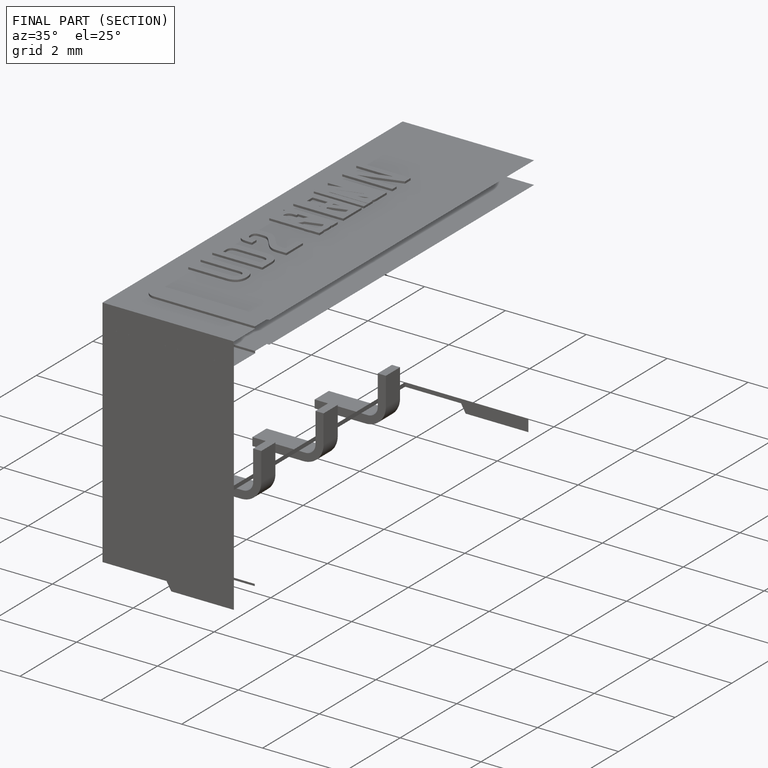
[diagram: finished part — half-section view (interior)]
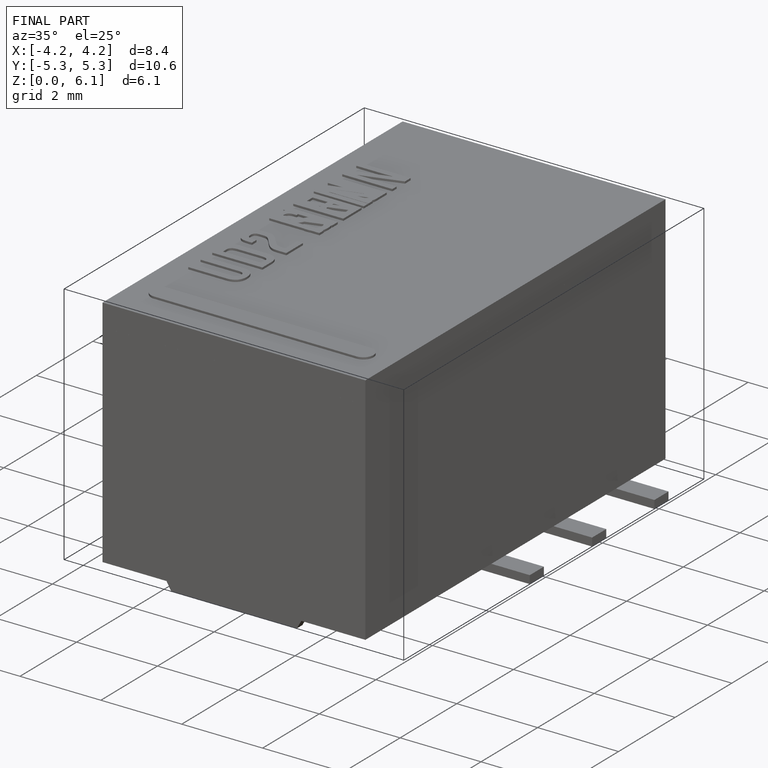
[diagram: finished part — iso view with bounding-box wireframe]
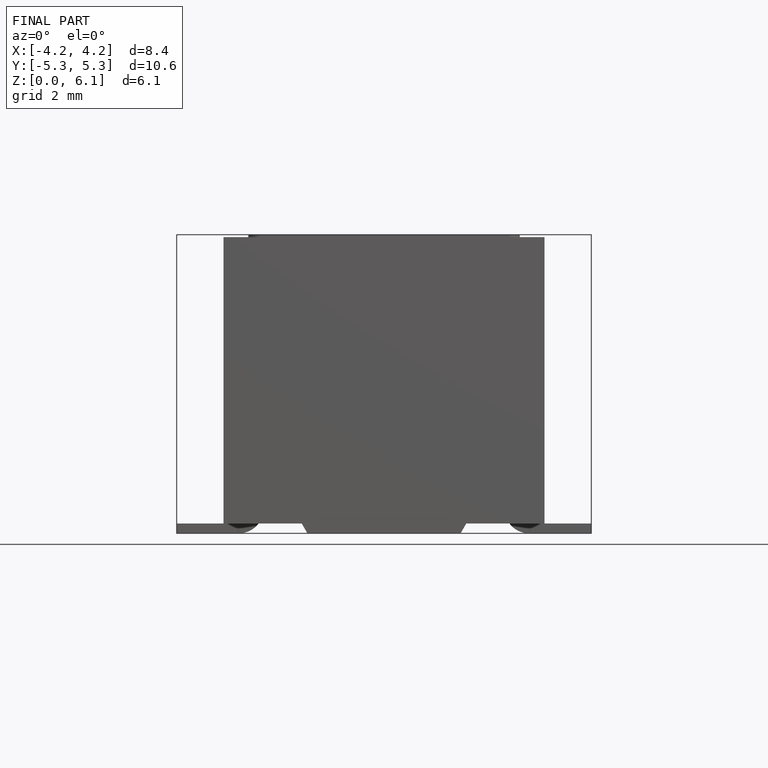
[diagram: finished part — front view with bounding-box wireframe]
